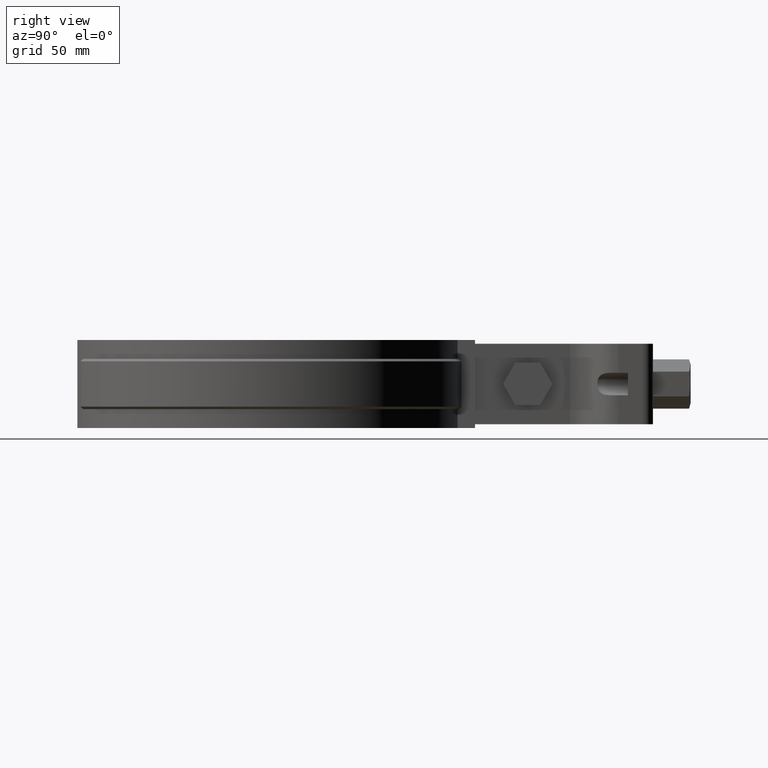
[diagram: clean part render]
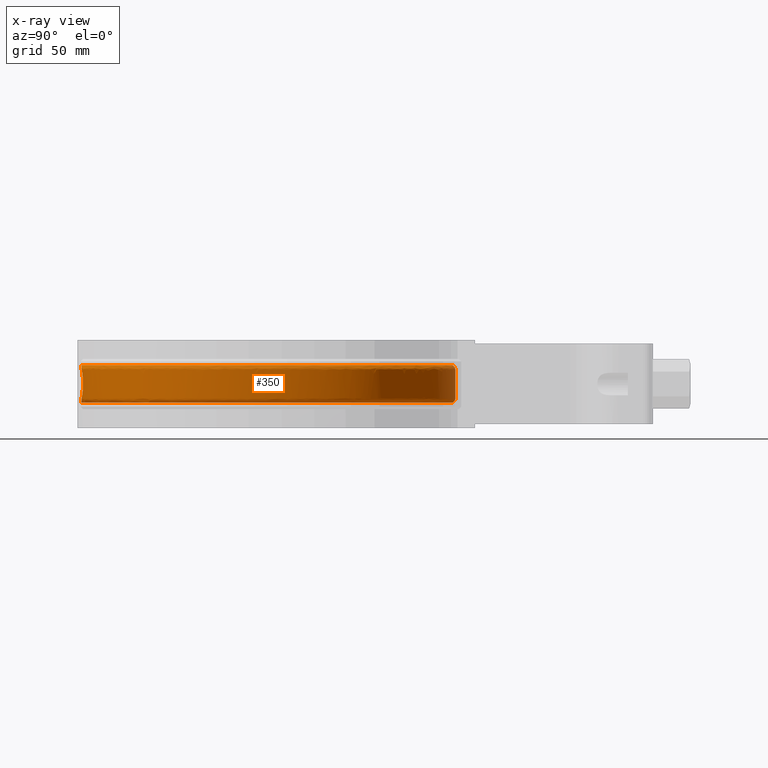
[diagram: x-ray — body ghosted, one internal face saturated and labeled with its STEP entity id]
A machine part, right view, then the same camera in x-ray: the body is ghosted and one INTERNAL B-rep face — a face not visible from any outside direction — is saturated and labeled: STEP entity #350.
In plain terms, the highlighted face is a freeform B-spline surface patch.
Its self-contained STEP definition (entity closure, byte-faithful):
#350 = ADVANCED_FACE( '', ( #571, #572 ), #573, .T. );
#571 = FACE_BOUND( '', #1333, .T. );
#572 = FACE_OUTER_BOUND( '', #1334, .T. );
#573 = B_SPLINE_SURFACE_WITH_KNOTS( '', 3, 3, ( ( #1335, #1336, #1337, #1338, #1339, #1340, #1341, #1342, #1343, #1344, #1345, #1346, #1347, #1348, #1349, #1350, #1351 ), ( #1352, #1353, #1354, #1355, #1356, #1357, #1358, #1359, #1360, #1361, #1362, #1363, #1364, #1365, #1366, #1367, #1368 ), ( #1369, #1370, #1371, #1372, #1373, #1374, #1375, #1376, #1377, #1378, #1379, #1380, #1381, #1382, #1383, #1384, #1385 ), ( #1386, #1387, #1388, #1389, #1390, #1391, #1392, #1393, #1394, #1395, #1396, #1397, #1398, #1399, #1400, #1401, #1402 ), ( #1403, #1404, #1405, #1406, #1407, #1408, #1409, #1410, #1411, #1412, #1413, #1414, #1415, #1416, #1417, #1418, #1419 ), ( #1420, #1421, #1422, #1423, #1424, #1425, #1426, #1427, #1428, #1429, #1430, #1431, #1432, #1433, #1434, #1435, #1436 ), ( #1437, #1438, #1439, #1440, #1441, #1442, #1443, #1444, #1445, #1446, #1447, #1448, #1449, #1450, #1451, #1452, #1453 ), ( #1454, #1455, #1456, #1457, #1458, #1459, #1460, #1461, #1462, #1463, #1464, #1465, #1466, #1467, #1468, #1469, #1470 ), ( #1471, #1472, #1473, #1474, #1475, #1476, #1477, #1478, #1479, #1480, #1481, #1482, #1483, #1484, #1485, #1486, #1487 ), ( #1488, #1489, #1490, #1491, #1492, #1493, #1494, #1495, #1496, #1497, #1498, #1499, #1500, #1501, #1502, #1503, #1504 ), ( #1505, #1506, #1507, #1508, #1509, #1510, #1511, #1512, #1513, #1514, #1515, #1516, #1517, #1518, #1519, #1520, #1521 ), ( #1522, #1523, #1524, #1525, #1526, #1527, #1528, #1529, #1530, #1531, #1532, #1533, #1534, #1535, #1536, #1537, #1538 ), ( #1539, #1540, #1541, #1542, #1543, #1544, #1545, #1546, #1547, #1548, #1549, #1550, #1551, #1552, #1553, #1554, #1555 ), ( #1556, #1557, #1558, #1559, #1560, #1561, #1562, #1563, #1564, #1565, #1566, #1567, #1568, #1569, #1570, #1571, #1572 ), ( #1573, #1574, #1575, #1576, #1577, #1578, #1579, #1580, #1581, #1582, #1583, #1584, #1585, #1586, #1587, #1588, #1589 ), ( #1590, #1591, #1592, #1593, #1594, #1595, #1596, #1597, #1598, #1599, #1600, #1601, #1602, #1603, #1604, #1605, #1606 ), ( #1607, #1608, #1609, #1610, #1611, #1612, #1613, #1614, #1615, #1616, #1617, #1618, #1619, #1620, #1621, #1622, #1623 ), ( #1624, #1625, #1626, #1627, #1628, #1629, #1630, #1631, #1632, #1633, #1634, #1635, #1636, #1637, #1638, #1639, #1640 ), ( #1641, #1642, #1643, #1644, #1645, #1646, #1647, #1648, #1649, #1650, #1651, #1652, #1653, #1654, #1655, #1656, #1657 ), ( #1658, #1659, #1660, #1661, #1662, #1663, #1664, #1665, #1666, #1667, #1668, #1669, #1670, #1671, #1672, #1673, #1674 ), ( #1675, #1676, #1677, #1678, #1679, #1680, #1681, #1682, #1683, #1684, #1685, #1686, #1687, #1688, #1689, #1690, #1691 ), ( #1692, #1693, #1694, #1695, #1696, #1697, #1698, #1699, #1700, #1701, #1702, #1703, #1704, #1705, #1706, #1707, #1708 ) ), .UNSPECIFIED., .F., .F., .F., ( 4, 3, 1, 1, 1, 3, 3, 1, 1, 1, 3, 4 ), ( 4, 1, 1, 1, 1, 1, 1, 1, 1, 1, 1, 1, 1, 1, 4 ), ( 0.000000000000000, 0.0909090909090909, 0.181818181818182, 0.272727272727273, 0.363636363636364, 0.454545454545455, 0.545454545454545, 0.636363636363636, 0.727272727272727, 0.818181818181818, 0.909090909090909, 1.00000000000000 ), ( 2.93927675343958, 4.00000000000000, 5.00000000000000, 6.00000000000000, 7.00000000000000, 8.00000000000000, 9.00000000000000, 10.0000000000000, 11.0000000000000, 12.0000000000000, 13.0000000000000, 14.0000000000000, 15.0000000000000, 16.0000000000000, 17.0000000000000 ), .UNSPECIFIED. );
#1333 = EDGE_LOOP( '', ( #3428, #3429, #3430, #3431, #3432, #3433 ) );
#1334 = EDGE_LOOP( '', ( #3434, #3435, #3436, #3437 ) );
#1335 = CARTESIAN_POINT( '', ( -4.61408278539141, 70.8624171730569, -26.5000000000000 ) );
#1336 = CARTESIAN_POINT( '', ( -15.6052744550126, 70.1472941383269, -26.5000000000000 ) );
#1337 = CARTESIAN_POINT( '', ( -36.6617611339115, 63.6807156917407, -26.5000000000000 ) );
#1338 = CARTESIAN_POINT( '', ( -60.4969619260765, 41.4439888512903, -26.5000000000000 ) );
#1339 = CARTESIAN_POINT( '', ( -72.3802217986226, 11.7823910310343, -26.5000000000000 ) );
#1340 = CARTESIAN_POINT( '', ( -70.5192778564034, -20.1169506966164, -26.5000000000000 ) );
#1341 = CARTESIAN_POINT( '', ( -55.2698527498513, -48.1966426214465, -26.5000000000000 ) );
#1342 = CARTESIAN_POINT( '', ( -29.5266031782373, -67.1256351168169, -26.5000000000000 ) );
#1343 = CARTESIAN_POINT( '', ( 1.82261616750916, -73.3099539517817, -26.5000000000000 ) );
#1344 = CARTESIAN_POINT( '', ( 32.8257890665060, -65.5754380062658, -26.5000000000000 ) );
#1345 = CARTESIAN_POINT( '', ( 57.5965972162112, -45.3906027783521, -26.5000000000000 ) );
#1346 = CARTESIAN_POINT( '', ( 71.4318266744617, -16.5877122940593, -26.5000000000000 ) );
#1347 = CARTESIAN_POINT( '', ( 71.7052861561752, 15.3643128019334, -26.5000000000000 ) );
#1348 = CARTESIAN_POINT( '', ( 58.3627979269206, 44.4001782011631, -26.5000000000000 ) );
#1349 = CARTESIAN_POINT( '', ( 33.9460318401430, 65.0025488558879, -26.5000000000000 ) );
#1350 = CARTESIAN_POINT( '', ( 13.3549246916386, 70.5185901661193, -26.5000000000000 ) );
#1351 = CARTESIAN_POINT( '', ( 2.97799040788178, 70.9496140061351, -26.5000000000000 ) );
#1352 = CARTESIAN_POINT( '', ( -4.58317847313393, 72.0000761796201, -25.3619288125423 ) );
#1353 = CARTESIAN_POINT( '', ( -15.7546006070130, 71.2897577749478, -25.3619288125423 ) );
#1354 = CARTESIAN_POINT( '', ( -37.1520462050843, 64.7507535133130, -25.3619288125423 ) );
#1355 = CARTESIAN_POINT( '', ( -61.4020090744283, 42.1941559292932, -25.3619288125423 ) );
#1356 = CARTESIAN_POINT( '', ( -73.5179681451020, 12.0766046186175, -25.3619288125423 ) );
#1357 = CARTESIAN_POINT( '', ( -71.6742434158291, -20.3345508184463, -25.3619288125423 ) );
#1358 = CARTESIAN_POINT( '', ( -56.2226090221052, -48.8847422760475, -25.3619288125423 ) );
#1359 = CARTESIAN_POINT( '', ( -30.0962954527366, -68.1535897998528, -25.3619288125423 ) );
#1360 = CARTESIAN_POINT( '', ( 1.74416083732159, -74.4825932048340, -25.3619288125423 ) );
#1361 = CARTESIAN_POINT( '', ( 33.2534664050969, -66.6701216190303, -25.3619288125423 ) );
#1362 = CARTESIAN_POINT( '', ( 58.4491977296035, -46.1994896762213, -25.3619288125423 ) );
#1363 = CARTESIAN_POINT( '', ( 72.5475111608291, -16.9572300654301, -25.3619288125423 ) );
#1364 = CARTESIAN_POINT( '', ( 72.8720854100233, 15.5043409607623, -25.3619288125423 ) );
#1365 = CARTESIAN_POINT( '', ( 59.3597111215706, 45.0230947830519, -25.3619288125423 ) );
#1366 = CARTESIAN_POINT( '', ( 34.5818006473789, 65.9903515204438, -25.3619288125423 ) );
#1367 = CARTESIAN_POINT( '', ( 13.6743882856698, 71.6239562096893, -25.3619288125423 ) );
#1368 = CARTESIAN_POINT( '', ( 3.12959689003598, 72.0775419747086, -25.3619288125423 ) );
#1369 = CARTESIAN_POINT( '', ( -4.55227416087646, 73.1377351861834, -24.2238576250846 ) );
#1370 = CARTESIAN_POINT( '', ( -15.9039267590134, 72.4322214115685, -24.2238576250846 ) );
#1371 = CARTESIAN_POINT( '', ( -37.6423312762570, 65.8207913348853, -24.2238576250846 ) );
#1372 = CARTESIAN_POINT( '', ( -62.3070562227800, 42.9443230072962, -24.2238576250846 ) );
#1373 = CARTESIAN_POINT( '', ( -74.6557144915813, 12.3708182062007, -24.2238576250846 ) );
#1374 = CARTESIAN_POINT( '', ( -72.8292089752548, -20.5521509402763, -24.2238576250846 ) );
#1375 = CARTESIAN_POINT( '', ( -57.1753652943592, -49.5728419306485, -24.2238576250846 ) );
#1376 = CARTESIAN_POINT( '', ( -30.6659877272358, -69.1815444828886, -24.2238576250846 ) );
#1377 = CARTESIAN_POINT( '', ( 1.66570550713401, -75.6552324578863, -24.2238576250846 ) );
#1378 = CARTESIAN_POINT( '', ( 33.6811437436878, -67.7648052317949, -24.2238576250846 ) );
#1379 = CARTESIAN_POINT( '', ( 59.3017982429958, -47.0083765740904, -24.2238576250846 ) );
#1380 = CARTESIAN_POINT( '', ( 73.6631956471966, -17.3267478368009, -24.2238576250846 ) );
#1381 = CARTESIAN_POINT( '', ( 74.0388846638715, 15.6443691195912, -24.2238576250846 ) );
#1382 = CARTESIAN_POINT( '', ( 60.3566243162205, 45.6460113649407, -24.2238576250846 ) );
#1383 = CARTESIAN_POINT( '', ( 35.2175694546148, 66.9781541849998, -24.2238576250846 ) );
#1384 = CARTESIAN_POINT( '', ( 13.9938518797011, 72.7293222532593, -24.2238576250846 ) );
#1385 = CARTESIAN_POINT( '', ( 3.28120337219018, 73.2054699432820, -24.2238576250846 ) );
#1386 = CARTESIAN_POINT( '', ( -4.52136984861898, 74.2753941927466, -23.0857864376269 ) );
#1387 = CARTESIAN_POINT( '', ( -16.0532529110138, 73.5746850481894, -23.0857864376269 ) );
#1388 = CARTESIAN_POINT( '', ( -38.1326163474298, 66.8908291564576, -23.0857864376269 ) );
#1389 = CARTESIAN_POINT( '', ( -63.2121033711318, 43.6944900852991, -23.0857864376269 ) );
#1390 = CARTESIAN_POINT( '', ( -75.7934608380606, 12.6650317937838, -23.0857864376269 ) );
#1391 = CARTESIAN_POINT( '', ( -73.9841745346804, -20.7697510621062, -23.0857864376269 ) );
#1392 = CARTESIAN_POINT( '', ( -58.1281215666131, -50.2609415852494, -23.0857864376269 ) );
#1393 = CARTESIAN_POINT( '', ( -31.2356800017350, -70.2094991659245, -23.0857864376269 ) );
#1394 = CARTESIAN_POINT( '', ( 1.58725017694644, -76.8278717109386, -23.0857864376269 ) );
#1395 = CARTESIAN_POINT( '', ( 34.1088210822787, -68.8594888445595, -23.0857864376269 ) );
#1396 = CARTESIAN_POINT( '', ( 60.1543987563881, -47.8172634719595, -23.0857864376269 ) );
#1397 = CARTESIAN_POINT( '', ( 74.7788801335641, -17.6962656081718, -23.0857864376269 ) );
#1398 = CARTESIAN_POINT( '', ( 75.2056839177196, 15.7843972784200, -23.0857864376269 ) );
#1399 = CARTESIAN_POINT( '', ( 61.3535375108704, 46.2689279468294, -23.0857864376269 ) );
#1400 = CARTESIAN_POINT( '', ( 35.8533382618507, 67.9659568495558, -23.0857864376269 ) );
#1401 = CARTESIAN_POINT( '', ( 14.3133154737323, 73.8346882968293, -23.0857864376269 ) );
#1402 = CARTESIAN_POINT( '', ( 3.43280985434438, 74.3333979118554, -23.0857864376269 ) );
#1403 = CARTESIAN_POINT( '', ( -4.51885640188860, 74.3679199634714, -22.9932271442431 ) );
#1404 = CARTESIAN_POINT( '', ( -16.0653976021941, 73.6676015793235, -22.9932271442431 ) );
#1405 = CARTESIAN_POINT( '', ( -38.1724912166335, 66.9778552983634, -22.9932271442431 ) );
#1406 = CARTESIAN_POINT( '', ( -63.2857108268460, 43.7555011498309, -22.9932271442431 ) );
#1407 = CARTESIAN_POINT( '', ( -75.8859937121379, 12.6889601754797, -22.9932271442431 ) );
#1408 = CARTESIAN_POINT( '', ( -74.0781078467977, -20.7874484730755, -22.9932271442431 ) );
#1409 = CARTESIAN_POINT( '', ( -58.2056092038529, -50.3169047082152, -22.9932271442431 ) );
#1410 = CARTESIAN_POINT( '', ( -31.2820130562531, -70.2931026875152, -22.9932271442431 ) );
#1411 = CARTESIAN_POINT( '', ( 1.58086940744416, -76.9232424239949, -22.9932271442431 ) );
#1412 = CARTESIAN_POINT( '', ( 34.1436040665880, -68.9485194278771, -22.9932271442431 ) );
#1413 = CARTESIAN_POINT( '', ( 60.2237407289536, -47.8830502175685, -22.9932271442431 ) );
#1414 = CARTESIAN_POINT( '', ( 74.8696187172621, -17.7263184767338, -22.9932271442431 ) );
#1415 = CARTESIAN_POINT( '', ( 75.3005796638268, 15.7957857641122, -22.9932271442431 ) );
#1416 = CARTESIAN_POINT( '', ( 61.4346164292006, 46.3195897325702, -22.9932271442431 ) );
#1417 = CARTESIAN_POINT( '', ( 35.9050453186691, 68.0462948087639, -22.9932271442431 ) );
#1418 = CARTESIAN_POINT( '', ( 14.3392974376474, 73.9245876819037, -22.9932271442431 ) );
#1419 = CARTESIAN_POINT( '', ( 3.44514000470337, 74.4251322575709, -22.9932271442431 ) );
#1420 = CARTESIAN_POINT( '', ( -4.51432461421930, 74.5347455189103, -22.7898759680773 ) );
#1421 = CARTESIAN_POINT( '', ( -16.0872946891993, 73.8351316824989, -22.7898759680773 ) );
#1422 = CARTESIAN_POINT( '', ( -38.2443862913878, 67.1347649284850, -22.7898759680773 ) );
#1423 = CARTESIAN_POINT( '', ( -63.4184263350528, 43.8655051481623, -22.7898759680773 ) );
#1424 = CARTESIAN_POINT( '', ( -76.0528320750436, 12.7321034590850, -22.7898759680773 ) );
#1425 = CARTESIAN_POINT( '', ( -74.2474712235673, -20.8193572093299, -22.7898759680773 ) );
#1426 = CARTESIAN_POINT( '', ( -58.3453207460634, -50.4178071811124, -22.7898759680773 ) );
#1427 = CARTESIAN_POINT( '', ( -31.3655523501665, -70.4438412743625, -22.7898759680773 ) );
#1428 = CARTESIAN_POINT( '', ( 1.56936477032515, -77.0951974593712, -22.7898759680773 ) );
#1429 = CARTESIAN_POINT( '', ( 34.2063183853315, -69.1090431003269, -22.7898759680773 ) );
#1430 = CARTESIAN_POINT( '', ( 60.3487654977055, -48.0016648509918, -22.7898759680773 ) );
#1431 = CARTESIAN_POINT( '', ( 75.0332219437640, -17.7805043154586, -22.7898759680773 ) );
#1432 = CARTESIAN_POINT( '', ( 75.4716783256278, 15.8163193996207, -22.7898759680772 ) );
#1433 = CARTESIAN_POINT( '', ( 61.5808031129628, 46.4109338033032, -22.7898759680773 ) );
#1434 = CARTESIAN_POINT( '', ( 35.9982740311268, 68.1911455304897, -22.7898759680773 ) );
#1435 = CARTESIAN_POINT( '', ( 14.3861433653017, 74.0866778188585, -22.7898759680773 ) );
#1436 = CARTESIAN_POINT( '', ( 3.46737147779644, 74.5905308601105, -22.7898759680773 ) );
#1437 = CARTESIAN_POINT( '', ( -4.50927348117781, 74.7206893752282, -22.4418734431229 ) );
#1438 = CARTESIAN_POINT( '', ( -16.1117011944806, 74.0218608281134, -22.4418734431229 ) );
#1439 = CARTESIAN_POINT( '', ( -38.3245205814545, 67.3096564889625, -22.4418734431229 ) );
#1440 = CARTESIAN_POINT( '', ( -63.5663511138689, 43.9881156655158, -22.4418734431229 ) );
#1441 = CARTESIAN_POINT( '', ( -76.2387902065711, 12.7801909868422, -22.4418734431229 ) );
#1442 = CARTESIAN_POINT( '', ( -74.4362437369434, -20.8549227043990, -22.4418734431229 ) );
#1443 = CARTESIAN_POINT( '', ( -58.5010433082476, -50.5302731331854, -22.4418734431229 ) );
#1444 = CARTESIAN_POINT( '', ( -31.4586652933452, -70.6118545865949, -22.4418734431229 ) );
#1445 = CARTESIAN_POINT( '', ( 1.55654169543223, -77.2868586368632, -22.4418734431229 ) );
#1446 = CARTESIAN_POINT( '', ( 34.2762197996733, -69.2879628743815, -22.4418734431229 ) );
#1447 = CARTESIAN_POINT( '', ( 60.4881181740735, -48.1338727869788, -22.4418734431229 ) );
#1448 = CARTESIAN_POINT( '', ( 75.2155741904674, -17.8408998812567, -22.4418734431229 ) );
#1449 = CARTESIAN_POINT( '', ( 75.6623849886592, 15.8392062011100, -22.4418734431229 ) );
#1450 = CARTESIAN_POINT( '', ( 61.7437428715003, 46.5127459550398, -22.4418734431229 ) );
#1451 = CARTESIAN_POINT( '', ( 36.1021868055715, 68.3525962250027, -22.4418734431229 ) );
#1452 = CARTESIAN_POINT( '', ( 14.4383578621629, 74.2673435751163, -22.4418734431229 ) );
#1453 = CARTESIAN_POINT( '', ( 3.49215068999615, 74.7748842339382, -22.4418734431229 ) );
#1454 = CARTESIAN_POINT( '', ( -4.50616300880884, 74.8351930365859, -22.0642686993349 ) );
#1455 = CARTESIAN_POINT( '', ( -16.1267306462249, 74.1368480682324, -22.0642686993349 ) );
#1456 = CARTESIAN_POINT( '', ( -38.3738670336291, 67.4173541801464, -22.0642686993349 ) );
#1457 = CARTESIAN_POINT( '', ( -63.6574427428982, 44.0636188493045, -22.0642686993349 ) );
#1458 = CARTESIAN_POINT( '', ( -76.3533026585596, 12.8098031402248, -22.0642686993349 ) );
#1459 = CARTESIAN_POINT( '', ( -74.5524892767171, -20.8768238281256, -22.0642686993349 ) );
#1460 = CARTESIAN_POINT( '', ( -58.5969367885657, -50.5995293245189, -22.0642686993349 ) );
#1461 = CARTESIAN_POINT( '', ( -31.5160039606445, -70.7153166734226, -22.0642686993349 ) );
#1462 = CARTESIAN_POINT( '', ( 1.54864528490176, -77.4048830072165, -22.0642686993349 ) );
#1463 = CARTESIAN_POINT( '', ( 34.3192648780894, -69.3981411272383, -22.0642686993349 ) );
#1464 = CARTESIAN_POINT( '', ( 60.5739311284787, -48.2152860319811, -22.0642686993349 ) );
#1465 = CARTESIAN_POINT( '', ( 75.3278661495449, -17.8780912870422, -22.0642686993349 ) );
#1466 = CARTESIAN_POINT( '', ( 75.7798215719099, 15.8532998238797, -22.0642686993349 ) );
#1467 = CARTESIAN_POINT( '', ( 61.8440806793890, 46.5754415685191, -22.0642686993349 ) );
#1468 = CARTESIAN_POINT( '', ( 36.1661759761276, 68.4520170717926, -22.0642686993349 ) );
#1469 = CARTESIAN_POINT( '', ( 14.4705113905718, 74.3785969985052, -22.0642686993349 ) );
#1470 = CARTESIAN_POINT( '', ( 3.50740965352747, 74.8884084810143, -22.0642686993349 ) );
#1471 = CARTESIAN_POINT( '', ( -4.50546282348372, 74.8609684731900, -21.8024714832808 ) );
#1472 = CARTESIAN_POINT( '', ( -16.1301138627616, 74.1627323612132, -21.8024714832808 ) );
#1473 = CARTESIAN_POINT( '', ( -38.3849752054952, 67.4415975534900, -21.8024714832808 ) );
#1474 = CARTESIAN_POINT( '', ( -63.6779479955807, 44.0806150527802, -21.8024714832808 ) );
#1475 = CARTESIAN_POINT( '', ( -76.3790800739854, 12.8164690072650, -21.8024714832808 ) );
#1476 = CARTESIAN_POINT( '', ( -74.5786568202298, -20.8817538977800, -21.8024714832808 ) );
#1477 = CARTESIAN_POINT( '', ( -58.6185229657532, -50.6151192938525, -21.8024714832808 ) );
#1478 = CARTESIAN_POINT( '', ( -31.5289112263722, -70.7386065877217, -21.8024714832808 ) );
#1479 = CARTESIAN_POINT( '', ( 1.54686775720863, -77.4314509757836, -21.8024714832808 ) );
#1480 = CARTESIAN_POINT( '', ( 34.3289545742675, -69.4229428893652, -21.8024714832808 ) );
#1481 = CARTESIAN_POINT( '', ( 60.5932481209648, -48.2336126244272, -21.8024714832808 ) );
#1482 = CARTESIAN_POINT( '', ( 75.3531437191705, -17.8864632876462, -21.8024714832808 ) );
#1483 = CARTESIAN_POINT( '', ( 75.8062572261997, 15.8564723799003, -21.8024714832808 ) );
#1484 = CARTESIAN_POINT( '', ( 61.8666673004241, 46.5895547138232, -21.8024714832808 ) );
#1485 = CARTESIAN_POINT( '', ( 36.1805803086132, 68.4743972795795, -21.8024714832808 ) );
#1486 = CARTESIAN_POINT( '', ( 14.4777493358328, 74.4036407877390, -21.8024714832808 ) );
#1487 = CARTESIAN_POINT( '', ( 3.51084453449531, 74.9139634457974, -21.8024714832808 ) );
#1488 = CARTESIAN_POINT( '', ( -4.50546282348372, 74.8609684731900, -21.6715728752538 ) );
#1489 = CARTESIAN_POINT( '', ( -16.1301138627616, 74.1627323612132, -21.6715728752538 ) );
#1490 = CARTESIAN_POINT( '', ( -38.3849752054952, 67.4415975534900, -21.6715728752538 ) );
#1491 = CARTESIAN_POINT( '', ( -63.6779479955807, 44.0806150527802, -21.6715728752538 ) );
#1492 = CARTESIAN_POINT( '', ( -76.3790800739854, 12.8164690072650, -21.6715728752538 ) );
#1493 = CARTESIAN_POINT( '', ( -74.5786568202298, -20.8817538977800, -21.6715728752538 ) );
#1494 = CARTESIAN_POINT( '', ( -58.6185229657532, -50.6151192938525, -21.6715728752538 ) );
#1495 = CARTESIAN_POINT( '', ( -31.5289112263722, -70.7386065877217, -21.6715728752538 ) );
#1496 = CARTESIAN_POINT( '', ( 1.54686775720863, -77.4314509757836, -21.6715728752538 ) );
#1497 = CARTESIAN_POINT( '', ( 34.3289545742675, -69.4229428893652, -21.6715728752538 ) );
#1498 = CARTESIAN_POINT( '', ( 60.5932481209648, -48.2336126244272, -21.6715728752538 ) );
#1499 = CARTESIAN_POINT( '', ( 75.3531437191705, -17.8864632876462, -21.6715728752538 ) );
#1500 = CARTESIAN_POINT( '', ( 75.8062572261997, 15.8564723799003, -21.6715728752538 ) );
#1501 = CARTESIAN_POINT( '', ( 61.8666673004241, 46.5895547138232, -21.6715728752538 ) );
#1502 = CARTESIAN_POINT( '', ( 36.1805803086132, 68.4743972795795, -21.6715728752538 ) );
#1503 = CARTESIAN_POINT( '', ( 14.4777493358328, 74.4036407877390, -21.6715728752538 ) );
#1504 = CARTESIAN_POINT( '', ( 3.51084453449531, 74.9139634457974, -21.6715728752538 ) );
#1505 = CARTESIAN_POINT( '', ( -4.50546282348372, 74.8609684731900, -17.8905242917513 ) );
#1506 = CARTESIAN_POINT( '', ( -16.1301138627616, 74.1627323612132, -17.8905242917513 ) );
#1507 = CARTESIAN_POINT( '', ( -38.3849752054952, 67.4415975534900, -17.8905242917513 ) );
#1508 = CARTESIAN_POINT( '', ( -63.6779479955807, 44.0806150527802, -17.8905242917513 ) );
#1509 = CARTESIAN_POINT( '', ( -76.3790800739854, 12.8164690072650, -17.8905242917513 ) );
#1510 = CARTESIAN_POINT( '', ( -74.5786568202298, -20.8817538977800, -17.8905242917513 ) );
#1511 = CARTESIAN_POINT( '', ( -58.6185229657532, -50.6151192938525, -17.8905242917513 ) );
#1512 = CARTESIAN_POINT( '', ( -31.5289112263722, -70.7386065877217, -17.8905242917513 ) );
#1513 = CARTESIAN_POINT( '', ( 1.54686775720863, -77.4314509757836, -17.8905242917513 ) );
#1514 = CARTESIAN_POINT( '', ( 34.3289545742675, -69.4229428893652, -17.8905242917513 ) );
#1515 = CARTESIAN_POINT( '', ( 60.5932481209648, -48.2336126244272, -17.8905242917513 ) );
#1516 = CARTESIAN_POINT( '', ( 75.3531437191705, -17.8864632876462, -17.8905242917513 ) );
#1517 = CARTESIAN_POINT( '', ( 75.8062572261997, 15.8564723799003, -17.8905242917512 ) );
#1518 = CARTESIAN_POINT( '', ( 61.8666673004241, 46.5895547138232, -17.8905242917513 ) );
#1519 = CARTESIAN_POINT( '', ( 36.1805803086132, 68.4743972795795, -17.8905242917513 ) );
#1520 = CARTESIAN_POINT( '', ( 14.4777493358328, 74.4036407877390, -17.8905242917513 ) );
#1521 = CARTESIAN_POINT( '', ( 3.51084453449531, 74.9139634457974, -17.8905242917513 ) );
#1522 = CARTESIAN_POINT( '', ( -4.50546282348372, 74.8609684731900, -14.1094757082487 ) );
#1523 = CARTESIAN_POINT( '', ( -16.1301138627616, 74.1627323612132, -14.1094757082487 ) );
#1524 = CARTESIAN_POINT( '', ( -38.3849752054952, 67.4415975534900, -14.1094757082487 ) );
#1525 = CARTESIAN_POINT( '', ( -63.6779479955807, 44.0806150527802, -14.1094757082487 ) );
#1526 = CARTESIAN_POINT( '', ( -76.3790800739854, 12.8164690072650, -14.1094757082487 ) );
#1527 = CARTESIAN_POINT( '', ( -74.5786568202298, -20.8817538977800, -14.1094757082487 ) );
#1528 = CARTESIAN_POINT( '', ( -58.6185229657532, -50.6151192938525, -14.1094757082487 ) );
#1529 = CARTESIAN_POINT( '', ( -31.5289112263722, -70.7386065877217, -14.1094757082487 ) );
#1530 = CARTESIAN_POINT( '', ( 1.54686775720863, -77.4314509757836, -14.1094757082487 ) );
#1531 = CARTESIAN_POINT( '', ( 34.3289545742675, -69.4229428893652, -14.1094757082487 ) );
#1532 = CARTESIAN_POINT( '', ( 60.5932481209648, -48.2336126244272, -14.1094757082487 ) );
#1533 = CARTESIAN_POINT( '', ( 75.3531437191705, -17.8864632876462, -14.1094757082487 ) );
#1534 = CARTESIAN_POINT( '', ( 75.8062572261997, 15.8564723799003, -14.1094757082487 ) );
#1535 = CARTESIAN_POINT( '', ( 61.8666673004241, 46.5895547138232, -14.1094757082487 ) );
#1536 = CARTESIAN_POINT( '', ( 36.1805803086132, 68.4743972795795, -14.1094757082487 ) );
#1537 = CARTESIAN_POINT( '', ( 14.4777493358328, 74.4036407877390, -14.1094757082487 ) );
#1538 = CARTESIAN_POINT( '', ( 3.51084453449531, 74.9139634457974, -14.1094757082487 ) );
#1539 = CARTESIAN_POINT( '', ( -4.50546282348372, 74.8609684731900, -10.3284271247462 ) );
#1540 = CARTESIAN_POINT( '', ( -16.1301138627616, 74.1627323612132, -10.3284271247462 ) );
#1541 = CARTESIAN_POINT( '', ( -38.3849752054952, 67.4415975534900, -10.3284271247462 ) );
#1542 = CARTESIAN_POINT( '', ( -63.6779479955807, 44.0806150527802, -10.3284271247462 ) );
#1543 = CARTESIAN_POINT( '', ( -76.3790800739854, 12.8164690072650, -10.3284271247462 ) );
#1544 = CARTESIAN_POINT( '', ( -74.5786568202298, -20.8817538977800, -10.3284271247462 ) );
#1545 = CARTESIAN_POINT( '', ( -58.6185229657532, -50.6151192938525, -10.3284271247462 ) );
#1546 = CARTESIAN_POINT( '', ( -31.5289112263722, -70.7386065877217, -10.3284271247462 ) );
#1547 = CARTESIAN_POINT( '', ( 1.54686775720863, -77.4314509757836, -10.3284271247462 ) );
#1548 = CARTESIAN_POINT( '', ( 34.3289545742675, -69.4229428893652, -10.3284271247462 ) );
#1549 = CARTESIAN_POINT( '', ( 60.5932481209648, -48.2336126244272, -10.3284271247462 ) );
#1550 = CARTESIAN_POINT( '', ( 75.3531437191705, -17.8864632876462, -10.3284271247462 ) );
#1551 = CARTESIAN_POINT( '', ( 75.8062572261997, 15.8564723799003, -10.3284271247462 ) );
#1552 = CARTESIAN_POINT( '', ( 61.8666673004241, 46.5895547138232, -10.3284271247462 ) );
#1553 = CARTESIAN_POINT( '', ( 36.1805803086132, 68.4743972795795, -10.3284271247462 ) );
#1554 = CARTESIAN_POINT( '', ( 14.4777493358328, 74.4036407877390, -10.3284271247462 ) );
#1555 = CARTESIAN_POINT( '', ( 3.51084453449531, 74.9139634457974, -10.3284271247462 ) );
#1556 = CARTESIAN_POINT( '', ( -4.50546282348372, 74.8609684731900, -10.1975285167192 ) );
#1557 = CARTESIAN_POINT( '', ( -16.1301138627616, 74.1627323612132, -10.1975285167192 ) );
#1558 = CARTESIAN_POINT( '', ( -38.3849752054952, 67.4415975534900, -10.1975285167192 ) );
#1559 = CARTESIAN_POINT( '', ( -63.6779479955807, 44.0806150527802, -10.1975285167192 ) );
#1560 = CARTESIAN_POINT( '', ( -76.3790800739854, 12.8164690072650, -10.1975285167192 ) );
#1561 = CARTESIAN_POINT( '', ( -74.5786568202298, -20.8817538977800, -10.1975285167192 ) );
#1562 = CARTESIAN_POINT( '', ( -58.6185229657532, -50.6151192938525, -10.1975285167192 ) );
#1563 = CARTESIAN_POINT( '', ( -31.5289112263722, -70.7386065877217, -10.1975285167192 ) );
#1564 = CARTESIAN_POINT( '', ( 1.54686775720863, -77.4314509757836, -10.1975285167192 ) );
#1565 = CARTESIAN_POINT( '', ( 34.3289545742675, -69.4229428893652, -10.1975285167192 ) );
#1566 = CARTESIAN_POINT( '', ( 60.5932481209648, -48.2336126244272, -10.1975285167192 ) );
#1567 = CARTESIAN_POINT( '', ( 75.3531437191705, -17.8864632876462, -10.1975285167192 ) );
#1568 = CARTESIAN_POINT( '', ( 75.8062572261997, 15.8564723799003, -10.1975285167192 ) );
#1569 = CARTESIAN_POINT( '', ( 61.8666673004241, 46.5895547138232, -10.1975285167192 ) );
#1570 = CARTESIAN_POINT( '', ( 36.1805803086132, 68.4743972795795, -10.1975285167192 ) );
#1571 = CARTESIAN_POINT( '', ( 14.4777493358328, 74.4036407877390, -10.1975285167192 ) );
#1572 = CARTESIAN_POINT( '', ( 3.51084453449531, 74.9139634457974, -10.1975285167192 ) );
#1573 = CARTESIAN_POINT( '', ( -4.50616300880884, 74.8351930365859, -9.93573130066510 ) );
#1574 = CARTESIAN_POINT( '', ( -16.1267306462249, 74.1368480682324, -9.93573130066510 ) );
#1575 = CARTESIAN_POINT( '', ( -38.3738670336291, 67.4173541801463, -9.93573130066510 ) );
#1576 = CARTESIAN_POINT( '', ( -63.6574427428982, 44.0636188493045, -9.93573130066510 ) );
#1577 = CARTESIAN_POINT( '', ( -76.3533026585596, 12.8098031402248, -9.93573130066510 ) );
#1578 = CARTESIAN_POINT( '', ( -74.5524892767171, -20.8768238281256, -9.93573130066510 ) );
#1579 = CARTESIAN_POINT( '', ( -58.5969367885657, -50.5995293245189, -9.93573130066510 ) );
#1580 = CARTESIAN_POINT( '', ( -31.5160039606445, -70.7153166734226, -9.93573130066510 ) );
#1581 = CARTESIAN_POINT( '', ( 1.54864528490176, -77.4048830072165, -9.93573130066510 ) );
#1582 = CARTESIAN_POINT( '', ( 34.3192648780894, -69.3981411272383, -9.93573130066510 ) );
#1583 = CARTESIAN_POINT( '', ( 60.5739311284787, -48.2152860319811, -9.93573130066510 ) );
#1584 = CARTESIAN_POINT( '', ( 75.3278661495449, -17.8780912870422, -9.93573130066510 ) );
#1585 = CARTESIAN_POINT( '', ( 75.7798215719099, 15.8532998238797, -9.93573130066509 ) );
#1586 = CARTESIAN_POINT( '', ( 61.8440806793889, 46.5754415685191, -9.93573130066510 ) );
#1587 = CARTESIAN_POINT( '', ( 36.1661759761276, 68.4520170717926, -9.93573130066510 ) );
#1588 = CARTESIAN_POINT( '', ( 14.4705113905718, 74.3785969985052, -9.93573130066510 ) );
#1589 = CARTESIAN_POINT( '', ( 3.50740965352747, 74.8884084810143, -9.93573130066510 ) );
#1590 = CARTESIAN_POINT( '', ( -4.50927348117781, 74.7206893752281, -9.55812655687708 ) );
#1591 = CARTESIAN_POINT( '', ( -16.1117011944806, 74.0218608281134, -9.55812655687708 ) );
#1592 = CARTESIAN_POINT( '', ( -38.3245205814545, 67.3096564889625, -9.55812655687708 ) );
#1593 = CARTESIAN_POINT( '', ( -63.5663511138689, 43.9881156655158, -9.55812655687707 ) );
#1594 = CARTESIAN_POINT( '', ( -76.2387902065711, 12.7801909868422, -9.55812655687708 ) );
#1595 = CARTESIAN_POINT( '', ( -74.4362437369434, -20.8549227043990, -9.55812655687708 ) );
#1596 = CARTESIAN_POINT( '', ( -58.5010433082476, -50.5302731331854, -9.55812655687707 ) );
#1597 = CARTESIAN_POINT( '', ( -31.4586652933452, -70.6118545865948, -9.55812655687708 ) );
#1598 = CARTESIAN_POINT( '', ( 1.55654169543223, -77.2868586368632, -9.55812655687708 ) );
#1599 = CARTESIAN_POINT( '', ( 34.2762197996733, -69.2879628743815, -9.55812655687708 ) );
#1600 = CARTESIAN_POINT( '', ( 60.4881181740735, -48.1338727869788, -9.55812655687708 ) );
#1601 = CARTESIAN_POINT( '', ( 75.2155741904675, -17.8408998812567, -9.55812655687707 ) );
#1602 = CARTESIAN_POINT( '', ( 75.6623849886592, 15.8392062011100, -9.55812655687707 ) );
#1603 = CARTESIAN_POINT( '', ( 61.7437428715003, 46.5127459550398, -9.55812655687708 ) );
#1604 = CARTESIAN_POINT( '', ( 36.1021868055715, 68.3525962250027, -9.55812655687708 ) );
#1605 = CARTESIAN_POINT( '', ( 14.4383578621629, 74.2673435751163, -9.55812655687708 ) );
#1606 = CARTESIAN_POINT( '', ( 3.49215068999615, 74.7748842339382, -9.55812655687708 ) );
#1607 = CARTESIAN_POINT( '', ( -4.51432461421930, 74.5347455189103, -9.21012403192273 ) );
#1608 = CARTESIAN_POINT( '', ( -16.0872946891993, 73.8351316824988, -9.21012403192273 ) );
#1609 = CARTESIAN_POINT( '', ( -38.2443862913878, 67.1347649284850, -9.21012403192273 ) );
#1610 = CARTESIAN_POINT( '', ( -63.4184263350528, 43.8655051481623, -9.21012403192273 ) );
#1611 = CARTESIAN_POINT( '', ( -76.0528320750436, 12.7321034590850, -9.21012403192273 ) );
#1612 = CARTESIAN_POINT( '', ( -74.2474712235672, -20.8193572093299, -9.21012403192274 ) );
#1613 = CARTESIAN_POINT( '', ( -58.3453207460634, -50.4178071811124, -9.21012403192273 ) );
#1614 = CARTESIAN_POINT( '', ( -31.3655523501665, -70.4438412743624, -9.21012403192273 ) );
#1615 = CARTESIAN_POINT( '', ( 1.56936477032515, -77.0951974593712, -9.21012403192273 ) );
#1616 = CARTESIAN_POINT( '', ( 34.2063183853315, -69.1090431003269, -9.21012403192273 ) );
#1617 = CARTESIAN_POINT( '', ( 60.3487654977054, -48.0016648509918, -9.21012403192273 ) );
#1618 = CARTESIAN_POINT( '', ( 75.0332219437640, -17.7805043154586, -9.21012403192273 ) );
#1619 = CARTESIAN_POINT( '', ( 75.4716783256278, 15.8163193996207, -9.21012403192272 ) );
#1620 = CARTESIAN_POINT( '', ( 61.5808031129628, 46.4109338033032, -9.21012403192274 ) );
#1621 = CARTESIAN_POINT( '', ( 35.9982740311268, 68.1911455304896, -9.21012403192273 ) );
#1622 = CARTESIAN_POINT( '', ( 14.3861433653017, 74.0866778188585, -9.21012403192273 ) );
#1623 = CARTESIAN_POINT( '', ( 3.46737147779644, 74.5905308601105, -9.21012403192273 ) );
#1624 = CARTESIAN_POINT( '', ( -4.51885640188860, 74.3679199634714, -9.00677285575691 ) );
#1625 = CARTESIAN_POINT( '', ( -16.0653976021941, 73.6676015793235, -9.00677285575690 ) );
#1626 = CARTESIAN_POINT( '', ( -38.1724912166335, 66.9778552983634, -9.00677285575691 ) );
#1627 = CARTESIAN_POINT( '', ( -63.2857108268460, 43.7555011498309, -9.00677285575690 ) );
#1628 = CARTESIAN_POINT( '', ( -75.8859937121379, 12.6889601754797, -9.00677285575690 ) );
#1629 = CARTESIAN_POINT( '', ( -74.0781078467977, -20.7874484730755, -9.00677285575691 ) );
#1630 = CARTESIAN_POINT( '', ( -58.2056092038529, -50.3169047082152, -9.00677285575690 ) );
#1631 = CARTESIAN_POINT( '', ( -31.2820130562530, -70.2931026875152, -9.00677285575691 ) );
#1632 = CARTESIAN_POINT( '', ( 1.58086940744416, -76.9232424239949, -9.00677285575690 ) );
#1633 = CARTESIAN_POINT( '', ( 34.1436040665880, -68.9485194278771, -9.00677285575691 ) );
#1634 = CARTESIAN_POINT( '', ( 60.2237407289536, -47.8830502175685, -9.00677285575691 ) );
#1635 = CARTESIAN_POINT( '', ( 74.8696187172621, -17.7263184767338, -9.00677285575690 ) );
#1636 = CARTESIAN_POINT( '', ( 75.3005796638268, 15.7957857641122, -9.00677285575690 ) );
#1637 = CARTESIAN_POINT( '', ( 61.4346164292006, 46.3195897325701, -9.00677285575691 ) );
#1638 = CARTESIAN_POINT( '', ( 35.9050453186691, 68.0462948087639, -9.00677285575691 ) );
#1639 = CARTESIAN_POINT( '', ( 14.3392974376474, 73.9245876819036, -9.00677285575691 ) );
#1640 = CARTESIAN_POINT( '', ( 3.44514000470337, 74.4251322575709, -9.00677285575691 ) );
#1641 = CARTESIAN_POINT( '', ( -4.52136984861898, 74.2753941927466, -8.91421356237311 ) );
#1642 = CARTESIAN_POINT( '', ( -16.0532529110138, 73.5746850481894, -8.91421356237311 ) );
#1643 = CARTESIAN_POINT( '', ( -38.1326163474298, 66.8908291564576, -8.91421356237311 ) );
#1644 = CARTESIAN_POINT( '', ( -63.2121033711318, 43.6944900852991, -8.91421356237310 ) );
#1645 = CARTESIAN_POINT( '', ( -75.7934608380606, 12.6650317937838, -8.91421356237311 ) );
#1646 = CARTESIAN_POINT( '', ( -73.9841745346804, -20.7697510621062, -8.91421356237311 ) );
#1647 = CARTESIAN_POINT( '', ( -58.1281215666131, -50.2609415852494, -8.91421356237310 ) );
#1648 = CARTESIAN_POINT( '', ( -31.2356800017350, -70.2094991659245, -8.91421356237311 ) );
#1649 = CARTESIAN_POINT( '', ( 1.58725017694644, -76.8278717109386, -8.91421356237311 ) );
#1650 = CARTESIAN_POINT( '', ( 34.1088210822787, -68.8594888445595, -8.91421356237311 ) );
#1651 = CARTESIAN_POINT( '', ( 60.1543987563881, -47.8172634719595, -8.91421356237311 ) );
#1652 = CARTESIAN_POINT( '', ( 74.7788801335641, -17.6962656081718, -8.91421356237310 ) );
#1653 = CARTESIAN_POINT( '', ( 75.2056839177196, 15.7843972784200, -8.91421356237310 ) );
#1654 = CARTESIAN_POINT( '', ( 61.3535375108704, 46.2689279468294, -8.91421356237311 ) );
#1655 = CARTESIAN_POINT( '', ( 35.8533382618507, 67.9659568495558, -8.91421356237311 ) );
#1656 = CARTESIAN_POINT( '', ( 14.3133154737323, 73.8346882968293, -8.91421356237311 ) );
#1657 = CARTESIAN_POINT( '', ( 3.43280985434438, 74.3333979118554, -8.91421356237311 ) );
#1658 = CARTESIAN_POINT( '', ( -4.55227416087646, 73.1377351861834, -7.77614237491540 ) );
#1659 = CARTESIAN_POINT( '', ( -15.9039267590134, 72.4322214115686, -7.77614237491540 ) );
#1660 = CARTESIAN_POINT( '', ( -37.6423312762570, 65.8207913348853, -7.77614237491540 ) );
#1661 = CARTESIAN_POINT( '', ( -62.3070562227800, 42.9443230072962, -7.77614237491540 ) );
#1662 = CARTESIAN_POINT( '', ( -74.6557144915813, 12.3708182062007, -7.77614237491540 ) );
#1663 = CARTESIAN_POINT( '', ( -72.8292089752548, -20.5521509402763, -7.77614237491540 ) );
#1664 = CARTESIAN_POINT( '', ( -57.1753652943592, -49.5728419306485, -7.77614237491540 ) );
#1665 = CARTESIAN_POINT( '', ( -30.6659877272358, -69.1815444828886, -7.77614237491540 ) );
#1666 = CARTESIAN_POINT( '', ( 1.66570550713401, -75.6552324578863, -7.77614237491540 ) );
#1667 = CARTESIAN_POINT( '', ( 33.6811437436878, -67.7648052317949, -7.77614237491540 ) );
#1668 = CARTESIAN_POINT( '', ( 59.3017982429958, -47.0083765740904, -7.77614237491540 ) );
#1669 = CARTESIAN_POINT( '', ( 73.6631956471966, -17.3267478368010, -7.77614237491540 ) );
#1670 = CARTESIAN_POINT( '', ( 74.0388846638715, 15.6443691195912, -7.77614237491540 ) );
#1671 = CARTESIAN_POINT( '', ( 60.3566243162205, 45.6460113649407, -7.77614237491541 ) );
#1672 = CARTESIAN_POINT( '', ( 35.2175694546148, 66.9781541849998, -7.77614237491540 ) );
#1673 = CARTESIAN_POINT( '', ( 13.9938518797011, 72.7293222532593, -7.77614237491540 ) );
#1674 = CARTESIAN_POINT( '', ( 3.28120337219018, 73.2054699432820, -7.77614237491540 ) );
#1675 = CARTESIAN_POINT( '', ( -4.58317847313393, 72.0000761796201, -6.63807118745771 ) );
#1676 = CARTESIAN_POINT( '', ( -15.7546006070130, 71.2897577749478, -6.63807118745771 ) );
#1677 = CARTESIAN_POINT( '', ( -37.1520462050843, 64.7507535133130, -6.63807118745771 ) );
#1678 = CARTESIAN_POINT( '', ( -61.4020090744283, 42.1941559292932, -6.63807118745770 ) );
#1679 = CARTESIAN_POINT( '', ( -73.5179681451019, 12.0766046186175, -6.63807118745771 ) );
#1680 = CARTESIAN_POINT( '', ( -71.6742434158291, -20.3345508184463, -6.63807118745771 ) );
#1681 = CARTESIAN_POINT( '', ( -56.2226090221052, -48.8847422760475, -6.63807118745770 ) );
#1682 = CARTESIAN_POINT( '', ( -30.0962954527366, -68.1535897998528, -6.63807118745771 ) );
#1683 = CARTESIAN_POINT( '', ( 1.74416083732159, -74.4825932048340, -6.63807118745770 ) );
#1684 = CARTESIAN_POINT( '', ( 33.2534664050969, -66.6701216190303, -6.63807118745771 ) );
#1685 = CARTESIAN_POINT( '', ( 58.4491977296035, -46.1994896762213, -6.63807118745771 ) );
#1686 = CARTESIAN_POINT( '', ( 72.5475111608292, -16.9572300654301, -6.63807118745770 ) );
#1687 = CARTESIAN_POINT( '', ( 72.8720854100233, 15.5043409607623, -6.63807118745770 ) );
#1688 = CARTESIAN_POINT( '', ( 59.3597111215706, 45.0230947830519, -6.63807118745771 ) );
#1689 = CARTESIAN_POINT( '', ( 34.5818006473789, 65.9903515204438, -6.63807118745771 ) );
#1690 = CARTESIAN_POINT( '', ( 13.6743882856698, 71.6239562096893, -6.63807118745771 ) );
#1691 = CARTESIAN_POINT( '', ( 3.12959689003598, 72.0775419747086, -6.63807118745771 ) );
#1692 = CARTESIAN_POINT( '', ( -4.61408278539141, 70.8624171730569, -5.50000000000001 ) );
#1693 = CARTESIAN_POINT( '', ( -15.6052744550126, 70.1472941383270, -5.50000000000001 ) );
#1694 = CARTESIAN_POINT( '', ( -36.6617611339115, 63.6807156917407, -5.50000000000001 ) );
#1695 = CARTESIAN_POINT( '', ( -60.4969619260765, 41.4439888512903, -5.50000000000001 ) );
#1696 = CARTESIAN_POINT( '', ( -72.3802217986227, 11.7823910310343, -5.50000000000001 ) );
#1697 = CARTESIAN_POINT( '', ( -70.5192778564034, -20.1169506966164, -5.50000000000001 ) );
#1698 = CARTESIAN_POINT( '', ( -55.2698527498513, -48.1966426214466, -5.50000000000001 ) );
#1699 = CARTESIAN_POINT( '', ( -29.5266031782373, -67.1256351168169, -5.50000000000001 ) );
#1700 = CARTESIAN_POINT( '', ( 1.82261616750916, -73.3099539517817, -5.50000000000001 ) );
#1701 = CARTESIAN_POINT( '', ( 32.8257890665060, -65.5754380062658, -5.50000000000001 ) );
#1702 = CARTESIAN_POINT( '', ( 57.5965972162112, -45.3906027783521, -5.50000000000001 ) );
#1703 = CARTESIAN_POINT( '', ( 71.4318266744617, -16.5877122940593, -5.50000000000001 ) );
#1704 = CARTESIAN_POINT( '', ( 71.7052861561752, 15.3643128019334, -5.50000000000001 ) );
#1705 = CARTESIAN_POINT( '', ( 58.3627979269206, 44.4001782011632, -5.50000000000001 ) );
#1706 = CARTESIAN_POINT( '', ( 33.9460318401430, 65.0025488558879, -5.50000000000001 ) );
#1707 = CARTESIAN_POINT( '', ( 13.3549246916386, 70.5185901661193, -5.50000000000001 ) );
#1708 = CARTESIAN_POINT( '', ( 2.97799040788178, 70.9496140061351, -5.50000000000001 ) );
#3428 = ORIENTED_EDGE( '', *, *, #5072, .F. );
#3429 = ORIENTED_EDGE( '', *, *, #5070, .F. );
#3430 = ORIENTED_EDGE( '', *, *, #5067, .F. );
#3431 = ORIENTED_EDGE( '', *, *, #5061, .F. );
#3432 = ORIENTED_EDGE( '', *, *, #5059, .F. );
#3433 = ORIENTED_EDGE( '', *, *, #5073, .F. );
#3434 = ORIENTED_EDGE( '', *, *, #5074, .F. );
#3435 = ORIENTED_EDGE( '', *, *, #5075, .F. );
#3436 = ORIENTED_EDGE( '', *, *, #5076, .F. );
#3437 = ORIENTED_EDGE( '', *, *, #5077, .F. );
#5059 = EDGE_CURVE( '', #5597, #5599, #5600, .T. );
#5061 = EDGE_CURVE( '', #5599, #5602, #5603, .T. );
#5067 = EDGE_CURVE( '', #5602, #5612, #5613, .T. );
#5070 = EDGE_CURVE( '', #5612, #5617, #5618, .T. );
#5072 = EDGE_CURVE( '', #5617, #5620, #5621, .T. );
#5073 = EDGE_CURVE( '', #5620, #5597, #5622, .T. );
#5074 = EDGE_CURVE( '', #5623, #5624, #5625, .T. );
#5075 = EDGE_CURVE( '', #5626, #5623, #5627, .T. );
#5076 = EDGE_CURVE( '', #5628, #5626, #5629, .T. );
#5077 = EDGE_CURVE( '', #5624, #5628, #5630, .T. );
#5597 = VERTEX_POINT( '', #7475 );
#5599 = VERTEX_POINT( '', #7478 );
#5600 = B_SPLINE_CURVE_WITH_KNOTS( '', 3, ( #7479, #7480, #7481, #7482, #7483, #7484, #7485, #7486, #7487, #7488, #7489, #7490, #7491, #7492, #7493, #7494, #7495, #7496, #7497, #7498, #7499 ), .UNSPECIFIED., .F., .F., ( 4, 2, 2, 2, 2, 1, 2, 2, 2, 2, 4 ), ( 0.000000000000000, 0.00137876587349194, 0.00275753174698387, 0.00413629762047581, 0.00482568055722178, 0.00551506349396775, 0.00620444643071371, 0.00689382936745968, 0.00827259524095162, 0.00965136111444356, 0.0110301269879355 ), .UNSPECIFIED. );
#5602 = VERTEX_POINT( '', #7502 );
#5603 = B_SPLINE_CURVE_WITH_KNOTS( '', 3, ( #7503, #7504, #7505, #7506, #7507 ), .UNSPECIFIED., .F., .F., ( 4, 1, 4 ), ( 0.000000000000000, 0.00956034493262803, 0.0160532780454055 ), .UNSPECIFIED. );
#5612 = VERTEX_POINT( '', #7673 );
#5613 = B_SPLINE_CURVE_WITH_KNOTS( '', 3, ( #7674, #7675, #7676, #7677, #7678, #7679, #7680, #7681, #7682, #7683, #7684, #7685, #7686, #7687, #7688, #7689, #7690, #7691, #7692, #7693, #7694, #7695, #7696, #7697 ), .UNSPECIFIED., .F., .F., ( 4, 2, 2, 2, 2, 2, 2, 2, 2, 2, 2, 4 ), ( 5.20417042793042E-018, 0.00137353922733282, 0.00274707845466564, 0.00343384806833205, 0.00412061768199845, 0.00480738729566486, 0.00549415690933126, 0.00686769613666406, 0.00824123536399686, 0.00892800497766325, 0.00961477459132965, 0.0109883138186624 ), .UNSPECIFIED. );
#5617 = VERTEX_POINT( '', #7705 );
#5618 = B_SPLINE_CURVE_WITH_KNOTS( '', 3, ( #7706, #7707, #7708, #7709, #7710, #7711, #7712, #7713, #7714, #7715, #7716, #7717, #7718, #7719, #7720, #7721, #7722, #7723, #7724, #7725, #7726 ), .UNSPECIFIED., .F., .F., ( 4, 2, 2, 2, 2, 1, 2, 2, 2, 2, 4 ), ( 0.000000000000000, 0.00137877810421007, 0.00275755620842013, 0.00413633431263020, 0.00482572336473523, 0.00551511241684027, 0.00620450146894530, 0.00689389052105033, 0.00827266862526040, 0.00965144672947047, 0.0110302248336805 ), .UNSPECIFIED. );
#5620 = VERTEX_POINT( '', #7729 );
#5621 = B_SPLINE_CURVE_WITH_KNOTS( '', 3, ( #7730, #7731, #7732, #7733, #7734 ), .UNSPECIFIED., .F., .F., ( 4, 1, 4 ), ( 0.000000000000000, 0.00648482001672418, 0.0160332190390226 ), .UNSPECIFIED. );
#5622 = B_SPLINE_CURVE_WITH_KNOTS( '', 3, ( #7735, #7736, #7737, #7738, #7739, #7740, #7741, #7742, #7743, #7744, #7745, #7746, #7747, #7748, #7749, #7750, #7751, #7752, #7753, #7754, #7755, #7756, #7757, #7758 ), .UNSPECIFIED., .F., .F., ( 4, 2, 2, 2, 2, 2, 2, 2, 2, 2, 2, 4 ), ( 1.59933602078778E-017, 0.00137353891642351, 0.00274707783284701, 0.00343384729105876, 0.00412061674927051, 0.00480738620748226, 0.00549415566569401, 0.00686769458211750, 0.00824123349854099, 0.00892800295675274, 0.00961477241496449, 0.0109883113313880 ), .UNSPECIFIED. );
#5623 = VERTEX_POINT( '', #7759 );
#5624 = VERTEX_POINT( '', #7760 );
#5625 = B_SPLINE_CURVE_WITH_KNOTS( '', 3, ( #7761, #7762, #7763, #7764, #7765, #7766, #7767, #7768, #7769, #7770, #7771, #7772, #7773, #7774, #7775, #7776, #7777, #7778, #7779, #7780, #7781, #7782, #7783, #7784, #7785, #7786, #7787, #7788, #7789, #7790, #7791, #7792, #7793, #7794, #7795, #7796, #7797, #7798, #7799, #7800, #7801, #7802, #7803, #7804, #7805, #7806, #7807, #7808, #7809, #7810, #7811, #7812, #7813, #7814, #7815, #7816, #7817, #7818, #7819, #7820, #7821, #7822, #7823, #7824, #7825, #7826, #7827, #7828, #7829, #7830, #7831, #7832, #7833, #7834, #7835, #7836, #7837, #7838, #7839, #7840, #7841, #7842, #7843, #7844, #7845, #7846, #7847, #7848, #7849, #7850, #7851, #7852, #7853, #7854, #7855, #7856, #7857, #7858, #7859, #7860, #7861, #7862, #7863, #7864, #7865, #7866, #7867, #7868, #7869, #7870, #7871, #7872, #7873, #7874, #7875, #7876, #7877, #7878, #7879, #7880, #7881, #7882, #7883, #7884, #7885, #7886, #7887, #7888, #7889, #7890, #7891, #7892, #7893, #7894 ), .UNSPECIFIED., .F., .F., ( 4, 2, 2, 2, 2, 2, 2, 2, 2, 2, 2, 2, 2, 2, 2, 2, 2, 2, 2, 2, 2, 2, 2, 2, 2, 2, 2, 2, 2, 2, 2, 2, 2, 2, 2, 2, 2, 2, 2, 2, 2, 2, 2, 2, 2, 2, 2, 2, 2, 2, 2, 2, 2, 2, 2, 2, 2, 2, 2, 2, 2, 2, 2, 2, 2, 2, 4 ), ( 1.38777878078145E-017, 0.00705430745483267, 0.0141086149096653, 0.0176357686370817, 0.0211629223644980, 0.0282172298193307, 0.0423258447289961, 0.0458529984564125, 0.0493801521838288, 0.0564344596386615, 0.0705430745483270, 0.0846516894579924, 0.0917059969128251, 0.0952331506402415, 0.0987603043676578, 0.112868919277323, 0.119923226732156, 0.123450380459572, 0.126977534186989, 0.141086149096654, 0.144613302824071, 0.148140456551487, 0.155194764006320, 0.169303378915985, 0.172830532643402, 0.176357686370818, 0.183411993825651, 0.190466301280484, 0.193993455007900, 0.197520608735316, 0.211629223644982, 0.218683531099815, 0.222210684827231, 0.225737838554647, 0.239846453464313, 0.246900760919146, 0.253955068373978, 0.268063683283644, 0.271590837011060, 0.275117990738477, 0.282172298193309, 0.289226605648142, 0.296280913102975, 0.299808066830391, 0.303335220557808, 0.310389528012640, 0.317443835467473, 0.320970989194890, 0.324498142922306, 0.338606757831971, 0.345661065286804, 0.349188219014221, 0.352715372741637, 0.366823987651302, 0.370351141378719, 0.373878295106135, 0.380932602560968, 0.387986910015801, 0.395041217470633, 0.398568371198050, 0.402095524925466, 0.409149832380299, 0.423258447289965, 0.437367062199630, 0.444421369654463, 0.447948523381880, 0.451475677109296 ), .UNSPECIFIED. );
#5626 = VERTEX_POINT( '', #7895 );
#5627 = B_SPLINE_CURVE_WITH_KNOTS( '', 3, ( #7896, #7897, #7898, #7899, #7900, #7901, #7902, #7903, #7904, #7905, #7906, #7907, #7908, #7909, #7910, #7911, #7912, #7913, #7914, #7915, #7916, #7917, #7918, #7919, #7920, #7921, #7922, #7923, #7924, #7925, #7926, #7927, #7928, #7929, #7930, #7931, #7932, #7933, #7934 ), .UNSPECIFIED., .F., .F., ( 4, 2, 2, 2, 2, 2, 2, 2, 2, 1, 1, 1, 2, 2, 2, 2, 2, 2, 2, 2, 4 ), ( 5.20417042793042E-018, 0.000550621469635411, 0.00110124293927082, 0.00137655367408853, 0.00165186440890624, 0.00220248587854169, 0.00275310734817714, 0.00302841808299487, 0.00330372881781260, 0.00440497175708352, 0.00880994351416724, 0.0132149152712510, 0.0143161582105219, 0.0145914689453396, 0.0148667796801573, 0.0154174011497928, 0.0159680226194283, 0.0162433333542460, 0.0165186440890637, 0.0170692655586992, 0.0176198870283347 ), .UNSPECIFIED. );
#5628 = VERTEX_POINT( '', #7935 );
#5629 = B_SPLINE_CURVE_WITH_KNOTS( '', 3, ( #7936, #7937, #7938, #7939, #7940, #7941, #7942, #7943, #7944, #7945, #7946, #7947, #7948, #7949, #7950, #7951, #7952, #7953, #7954, #7955, #7956, #7957, #7958, #7959, #7960, #7961, #7962, #7963, #7964, #7965, #7966, #7967, #7968, #7969, #7970, #7971, #7972, #7973, #7974, #7975, #7976, #7977, #7978, #7979, #7980, #7981, #7982, #7983, #7984, #7985, #7986, #7987, #7988, #7989, #7990, #7991, #7992, #7993, #7994, #7995, #7996, #7997, #7998, #7999, #8000, #8001, #8002, #8003, #8004, #8005, #8006, #8007, #8008, #8009, #8010, #8011, #8012, #8013, #8014, #8015, #8016, #8017, #8018, #8019, #8020, #8021, #8022, #8023, #8024, #8025, #8026, #8027, #8028, #8029, #8030, #8031, #8032, #8033, #8034, #8035, #8036, #8037, #8038, #8039, #8040, #8041, #8042, #8043, #8044, #8045, #8046, #8047, #8048, #8049, #8050, #8051, #8052, #8053, #8054, #8055, #8056, #8057, #8058, #8059, #8060, #8061, #8062, #8063, #8064, #8065, #8066, #8067, #8068, #8069, #8070, #8071, #8072, #8073 ), .UNSPECIFIED., .F., .F., ( 4, 2, 2, 2, 2, 2, 2, 2, 2, 2, 2, 2, 2, 2, 2, 2, 2, 2, 2, 2, 2, 2, 2, 2, 2, 2, 2, 2, 2, 2, 2, 2, 2, 2, 2, 2, 2, 2, 2, 2, 2, 2, 2, 2, 2, 2, 2, 2, 2, 2, 2, 2, 2, 2, 2, 2, 2, 2, 2, 2, 2, 2, 2, 2, 2, 2, 2, 2, 4 ), ( 1.73472347597681E-018, 0.00705430651106766, 0.0141086130221353, 0.0176357662776692, 0.0211629195332030, 0.0282172260442707, 0.0423258390664060, 0.0458529923219399, 0.0493801455774738, 0.0564344520885415, 0.0634887585996092, 0.0705430651106769, 0.0846516781328123, 0.0917059846438800, 0.0952331378994139, 0.0987602911549477, 0.112868904177083, 0.119923210688151, 0.123450363943685, 0.126977517199219, 0.141086130221354, 0.144613283476888, 0.148140436732422, 0.155194743243489, 0.162249049754557, 0.169303356265625, 0.172830509521159, 0.176357662776693, 0.183411969287760, 0.190466275798828, 0.193993429054362, 0.197520582309896, 0.211629195332031, 0.218683501843099, 0.222210655098633, 0.225737808354167, 0.239846421376302, 0.246900727887370, 0.253955034398437, 0.261009340909505, 0.268063647420573, 0.271590800676107, 0.275117953931641, 0.282172260442708, 0.296280873464844, 0.299808026720378, 0.303335179975911, 0.310389486486979, 0.317443792998047, 0.320970946253581, 0.324498099509115, 0.338606712531250, 0.345661019042318, 0.349188172297852, 0.352715325553386, 0.359769632064453, 0.366823938575521, 0.370351091831055, 0.373878245086589, 0.380932551597657, 0.395041164619792, 0.398568317875326, 0.402095471130860, 0.409149777641928, 0.423258390664063, 0.437367003686199, 0.444421310197267, 0.447948463452801, 0.451475616708334 ), .UNSPECIFIED. );
#5630 = B_SPLINE_CURVE_WITH_KNOTS( '', 3, ( #8074, #8075, #8076, #8077, #8078, #8079, #8080, #8081, #8082, #8083, #8084, #8085, #8086, #8087, #8088, #8089, #8090, #8091, #8092, #8093, #8094, #8095, #8096, #8097, #8098, #8099, #8100, #8101, #8102, #8103, #8104, #8105, #8106, #8107, #8108, #8109, #8110, #8111, #8112 ), .UNSPECIFIED., .F., .F., ( 4, 2, 2, 2, 2, 2, 2, 2, 2, 1, 1, 1, 2, 2, 2, 2, 2, 2, 2, 2, 4 ), ( 1.73472347597681E-018, 0.000550727276491110, 0.00110145455298222, 0.00137681819122776, 0.00165218182947331, 0.00220290910596440, 0.00275363638245550, 0.00302900002070104, 0.00330436365894658, 0.00440581821192876, 0.00881163642385747, 0.0132174546357862, 0.0143189091887684, 0.0145942728270139, 0.0148696364652594, 0.0154203637417505, 0.0159710910182416, 0.0162464546564871, 0.0165218182947327, 0.0170725455712238, 0.0176232728477149 ), .UNSPECIFIED. );
#7475 = CARTESIAN_POINT( '', ( -15.0000000000000, -73.4730172923338, -16.0000000000000 ) );
#7478 = CARTESIAN_POINT( '', ( -8.00000000000002, -74.0571698867520, -9.00000000000001 ) );
#7479 = CARTESIAN_POINT( '', ( -15.0000000000000, -73.4730172923338, -16.0000000000000 ) );
#7480 = CARTESIAN_POINT( '', ( -15.0000000000000, -73.4730172923338, -15.5353391788664 ) );
#7481 = CARTESIAN_POINT( '', ( -14.9541897585053, -73.4824114658373, -15.0776450877047 ) );
#7482 = CARTESIAN_POINT( '', ( -14.7737438975927, -73.5189030388669, -14.1757501839493 ) );
#7483 = CARTESIAN_POINT( '', ( -14.6371117796517, -73.5463902685453, -13.7288217788273 ) );
#7484 = CARTESIAN_POINT( '', ( -14.2848477993533, -73.6156385783253, -12.8838819940695 ) );
#7485 = CARTESIAN_POINT( '', ( -14.0689457887911, -73.6574640869408, -12.4815490878635 ) );
#7486 = CARTESIAN_POINT( '', ( -13.6844756245528, -73.7295633936370, -11.9085898731653 ) );
#7487 = CARTESIAN_POINT( '', ( -13.5461960211973, -73.7551477524541, -11.7230874401568 ) );
#7488 = CARTESIAN_POINT( '', ( -13.2552941245088, -73.8080340458390, -11.3702964441562 ) );
#7489 = CARTESIAN_POINT( '', ( -12.9486905523251, -73.8628954942041, -11.0335889967095 ) );
#7490 = CARTESIAN_POINT( '', ( -12.6111647150263, -73.9210320510181, -10.7284484439813 ) );
#7491 = CARTESIAN_POINT( '', ( -12.2579621076358, -73.9805215022140, -10.4392577359848 ) );
#7492 = CARTESIAN_POINT( '', ( -12.0724639035210, -74.0150335554812, -10.3019574503043 ) );
#7493 = CARTESIAN_POINT( '', ( -11.4996101703394, -74.0774634899401, -9.92025220669863 ) );
#7494 = CARTESIAN_POINT( '', ( -11.0980810089440, -74.0743588738192, -9.70642586691257 ) );
#7495 = CARTESIAN_POINT( '', ( -10.2569654139243, -74.0439139825706, -9.35821647243784 ) );
#7496 = CARTESIAN_POINT( '', ( -9.81265260794385, -74.0155411901068, -9.22329160266467 ) );
#7497 = CARTESIAN_POINT( '', ( -8.91479887142055, -73.9963128927556, -9.04495656343913 ) );
#7498 = CARTESIAN_POINT( '', ( -8.46014861603220, -74.0071646063030, -9.00000000000001 ) );
#7499 = CARTESIAN_POINT( '', ( -8.00000000000003, -74.0571698867520, -9.00000000000001 ) );
#7502 = CARTESIAN_POINT( '', ( 7.99999999999999, -74.0593005389373, -9.00000000000001 ) );
#7503 = CARTESIAN_POINT( '', ( -8.00000000000004, -74.0571698867520, -9.00000000000001 ) );
#7504 = CARTESIAN_POINT( '', ( -4.83575481215039, -74.4010348088984, -9.00000000000001 ) );
#7505 = CARTESIAN_POINT( '', ( 0.513725141085119, -74.6391794029709, -9.00000000000001 ) );
#7506 = CARTESIAN_POINT( '', ( 5.85118774830580, -74.2929627311577, -9.00000000000001 ) );
#7507 = CARTESIAN_POINT( '', ( 8.00000000000000, -74.0593005389373, -9.00000000000001 ) );
#7673 = CARTESIAN_POINT( '', ( 15.0000000000000, -73.4734822859335, -16.0000000000000 ) );
#7674 = CARTESIAN_POINT( '', ( 8.00000000000000, -74.0593005389373, -9.00000000000001 ) );
#7675 = CARTESIAN_POINT( '', ( 8.46136836396155, -74.0091312683277, -9.00000000000001 ) );
#7676 = CARTESIAN_POINT( '', ( 8.91719513860936, -73.9983102457564, -9.04519305327494 ) );
#7677 = CARTESIAN_POINT( '', ( 9.81731195657149, -74.0176380196210, -9.22445840976486 ) );
#7678 = CARTESIAN_POINT( '', ( 10.2625767543637, -74.0460793518853, -9.35994292366177 ) );
#7679 = CARTESIAN_POINT( '', ( 10.8967828411514, -74.0686636122743, -9.62339807908516 ) );
#7680 = CARTESIAN_POINT( '', ( 11.1036409701889, -74.0729206862178, -9.72145754906649 ) );
#7681 = CARTESIAN_POINT( '', ( 11.5082733228234, -74.0671509086025, -9.93825925394570 ) );
#7682 = CARTESIAN_POINT( '', ( 11.7072822200241, -74.0569901071440, -10.0578580524287 ) );
#7683 = CARTESIAN_POINT( '', ( 12.0896744221570, -74.0137766403514, -10.3142673730866 ) );
#7684 = CARTESIAN_POINT( '', ( 12.2720719436016, -73.9794960558572, -10.4501265005863 ) );
#7685 = CARTESIAN_POINT( '', ( 12.6232141894867, -73.9201914102900, -10.7390509307797 ) );
#7686 = CARTESIAN_POINT( '', ( 12.7915324666280, -73.8911254507499, -10.8918557220863 ) );
#7687 = CARTESIAN_POINT( '', ( 13.2746267389355, -73.8061565553183, -11.3755002285826 ) );
#7688 = CARTESIAN_POINT( '', ( 13.5688841452834, -73.7522093704697, -11.7344127868756 ) );
#7689 = CARTESIAN_POINT( '', ( 14.0749634843281, -73.6570772845182, -12.4925046599548 ) );
#7690 = CARTESIAN_POINT( '', ( 14.2901854861445, -73.6153066589257, -12.8942770654212 ) );
#7691 = CARTESIAN_POINT( '', ( 14.5546170764931, -73.5632160084168, -13.5322110949955 ) );
#7692 = CARTESIAN_POINT( '', ( 14.6327041323518, -73.5476708354604, -13.7506155915425 ) );
#7693 = CARTESIAN_POINT( '', ( 14.7655991752534, -73.5210579721861, -14.1891543069219 ) );
#7694 = CARTESIAN_POINT( '', ( 14.8209614826049, -73.5098811159500, -14.4105358553681 ) );
#7695 = CARTESIAN_POINT( '', ( 14.9543467649567, -73.4828585282444, -15.0809198458578 ) );
#7696 = CARTESIAN_POINT( '', ( 15.0000000000000, -73.4734822859335, -15.5360993255050 ) );
#7697 = CARTESIAN_POINT( '', ( 15.0000000000000, -73.4734822859335, -16.0000000000000 ) );
#7705 = CARTESIAN_POINT( '', ( 7.99999999999999, -74.0593005389372, -23.0000000000000 ) );
#7706 = CARTESIAN_POINT( '', ( 15.0000000000000, -73.4734822859335, -16.0000000000000 ) );
#7707 = CARTESIAN_POINT( '', ( 15.0000000000000, -73.4734822859335, -16.4646656091995 ) );
#7708 = CARTESIAN_POINT( '', ( 14.9541888277009, -73.4828923598073, -16.9223634163731 ) );
#7709 = CARTESIAN_POINT( '', ( 14.7737403152289, -73.5194458097898, -17.8242638693531 ) );
#7710 = CARTESIAN_POINT( '', ( 14.6371063923004, -73.5469797175392, -18.2711940240843 ) );
#7711 = CARTESIAN_POINT( '', ( 14.2848401387218, -73.6163458563258, -19.1161334997816 ) );
#7712 = CARTESIAN_POINT( '', ( 14.0689375547856, -73.6582426785072, -19.5184648116497 ) );
#7713 = CARTESIAN_POINT( '', ( 13.6844681985708, -73.7304648129943, -20.0914203790510 ) );
#7714 = CARTESIAN_POINT( '', ( 13.5461904646949, -73.7560924866153, -20.2769195851623 ) );
#7715 = CARTESIAN_POINT( '', ( 13.2552925759283, -73.8090681685039, -20.6297051472000 ) );
#7716 = CARTESIAN_POINT( '', ( 12.9486936932844, -73.8640216281424, -20.9664078020872 ) );
#7717 = CARTESIAN_POINT( '', ( 12.6111730689982, -73.9222557815113, -21.2715441080616 ) );
#7718 = CARTESIAN_POINT( '', ( 12.2579760794219, -73.9818436151111, -21.5607314323355 ) );
#7719 = CARTESIAN_POINT( '', ( 12.0724813105423, -74.0164056451726, -21.6980299200621 ) );
#7720 = CARTESIAN_POINT( '', ( 11.4996406952541, -74.0789873741708, -22.0797295155850 ) );
#7721 = CARTESIAN_POINT( '', ( 11.0981112376185, -74.0759839020601, -22.2935596808988 ) );
#7722 = CARTESIAN_POINT( '', ( 10.2569860691506, -74.0457264927232, -22.6417769144524 ) );
#7723 = CARTESIAN_POINT( '', ( 9.81266437274721, -74.0174414054450, -22.7767055859387 ) );
#7724 = CARTESIAN_POINT( '', ( 8.91480107323204, -73.9983564198162, -22.9550434738493 ) );
#7725 = CARTESIAN_POINT( '', ( 8.46014767952526, -74.0092640057510, -23.0000000000000 ) );
#7726 = CARTESIAN_POINT( '', ( 8.00000000000000, -74.0593005389372, -23.0000000000000 ) );
#7729 = CARTESIAN_POINT( '', ( -8.00000000000001, -74.0571698867520, -23.0000000000000 ) );
#7730 = CARTESIAN_POINT( '', ( 8.00000000000006, -74.0593005389372, -23.0000000000000 ) );
#7731 = CARTESIAN_POINT( '', ( 5.85118774830584, -74.2929627311577, -23.0000000000000 ) );
#7732 = CARTESIAN_POINT( '', ( 0.513725141085141, -74.6391794029708, -23.0000000000000 ) );
#7733 = CARTESIAN_POINT( '', ( -4.83575481215039, -74.4010348088983, -23.0000000000000 ) );
#7734 = CARTESIAN_POINT( '', ( -8.00000000000003, -74.0571698867520, -23.0000000000000 ) );
#7735 = CARTESIAN_POINT( '', ( -8.00000000000002, -74.0571698867520, -23.0000000000000 ) );
#7736 = CARTESIAN_POINT( '', ( -8.46137174439041, -74.0070316864714, -23.0000000000000 ) );
#7737 = CARTESIAN_POINT( '', ( -8.91719909143916, -73.9962668446301, -22.9548064241578 ) );
#7738 = CARTESIAN_POINT( '', ( -9.81731577025768, -74.0157392747629, -22.7755405660373 ) );
#7739 = CARTESIAN_POINT( '', ( -10.2625724629108, -74.0442689242575, -22.6400584022219 ) );
#7740 = CARTESIAN_POINT( '', ( -10.8967760518762, -74.0669943449718, -22.3766049696517 ) );
#7741 = CARTESIAN_POINT( '', ( -11.1036351603629, -74.0713001907360, -22.2785454620782 ) );
#7742 = CARTESIAN_POINT( '', ( -11.5082743105335, -74.0656293442000, -22.0617403185945 ) );
#7743 = CARTESIAN_POINT( '', ( -11.7072922436510, -74.0555183846926, -21.9421356049097 ) );
#7744 = CARTESIAN_POINT( '', ( -12.0896802817950, -74.0124053600131, -21.6857283191925 ) );
#7745 = CARTESIAN_POINT( '', ( -12.2720791898944, -73.9781743039291, -21.5498679961966 ) );
#7746 = CARTESIAN_POINT( '', ( -12.6232238012265, -73.9189680682055, -21.2609407014058 ) );
#7747 = CARTESIAN_POINT( '', ( -12.7915438547509, -73.8899506919409, -21.1081337578401 ) );
#7748 = CARTESIAN_POINT( '', ( -13.2746445152430, -73.8051242370908, -20.6244802127120 ) );
#7749 = CARTESIAN_POINT( '', ( -13.5689028004998, -73.7512688556743, -20.2655630832709 ) );
#7750 = CARTESIAN_POINT( '', ( -14.0749809579522, -73.6562989050876, -19.5074653496928 ) );
#7751 = CARTESIAN_POINT( '', ( -14.2902033548437, -73.6145991651548, -19.1056878192738 ) );
#7752 = CARTESIAN_POINT( '', ( -14.5546348709525, -73.5625966275662, -18.4677419795252 ) );
#7753 = CARTESIAN_POINT( '', ( -14.6327178097729, -73.5470784938889, -18.2493435099976 ) );
#7754 = CARTESIAN_POINT( '', ( -14.7656072680811, -73.5205115652060, -17.8108147514683 ) );
#7755 = CARTESIAN_POINT( '', ( -14.8209674525646, -73.5093539145879, -17.5894378699538 ) );
#7756 = CARTESIAN_POINT( '', ( -14.9543479172706, -73.4823776425117, -16.9190669024104 ) );
#7757 = CARTESIAN_POINT( '', ( -15.0000000000000, -73.4730172923338, -16.4638948147212 ) );
#7758 = CARTESIAN_POINT( '', ( -15.0000000000000, -73.4730172923338, -16.0000000000000 ) );
#7759 = CARTESIAN_POINT( '', ( 8.70588235294118, 73.4861048937604, -8.50092643561930 ) );
#7760 = CARTESIAN_POINT( '', ( -8.70588235294117, 73.4861048937604, -8.50119523429742 ) );
#7761 = CARTESIAN_POINT( '', ( 8.70588235294116, 73.4861048937603, -8.50092643561928 ) );
#7762 = CARTESIAN_POINT( '', ( 11.0418436227182, 73.2093640864321, -8.50217078338649 ) );
#7763 = CARTESIAN_POINT( '', ( 13.3661089409910, 72.8206026937156, -8.50393474625262 ) );
#7764 = CARTESIAN_POINT( '', ( 17.9474394468120, 71.8288414371374, -8.50598954878153 ) );
#7765 = CARTESIAN_POINT( '', ( 20.2072134898312, 71.2259800593855, -8.50628457027351 ) );
#7766 = CARTESIAN_POINT( '', ( 23.5508073970877, 70.1621507584837, -8.50540721516287 ) );
#7767 = CARTESIAN_POINT( '', ( 24.6576478977361, 69.7809066296812, -8.50491146460847 ) );
#7768 = CARTESIAN_POINT( '', ( 26.8558358155346, 68.9647635576173, -8.50367770642894 ) );
#7769 = CARTESIAN_POINT( '', ( 27.9494935031158, 68.5288500539669, -8.50293804136713 ) );
#7770 = CARTESIAN_POINT( '', ( 31.1882439560133, 67.1476235330736, -8.50082047573547 ) );
#7771 = CARTESIAN_POINT( '', ( 33.2876092369534, 66.1311769478600, -8.49956864708981 ) );
#7772 = CARTESIAN_POINT( '', ( 39.4117617958536, 62.8036862376088, -8.50131832532852 ) );
#7773 = CARTESIAN_POINT( '', ( 43.2641236884775, 60.2169174155174, -8.50702008421646 ) );
#7774 = CARTESIAN_POINT( '', ( 47.7861186343162, 56.5141859378201, -8.50785788063818 ) );
#7775 = CARTESIAN_POINT( '', ( 48.6771896137876, 55.7486475667368, -8.50778518531762 ) );
#7776 = CARTESIAN_POINT( '', ( 50.4225190603619, 54.1751794258616, -8.50717269696701 ) );
#7777 = CARTESIAN_POINT( '', ( 51.2730516365393, 53.3707455115162, -8.50663542823493 ) );
#7778 = CARTESIAN_POINT( '', ( 53.7595612058251, 50.9053904932488, -8.50457173167963 ) );
#7779 = CARTESIAN_POINT( '', ( 55.3305935332182, 49.1925308764650, -8.50253661368426 ) );
#7780 = CARTESIAN_POINT( '', ( 59.7887274015342, 43.8500487432535, -8.49851413754619 ) );
#7781 = CARTESIAN_POINT( '', ( 62.4232028887787, 40.0183915594800, -8.50290658299636 ) );
#7782 = CARTESIAN_POINT( '', ( 66.9880448628520, 31.7919764619003, -8.50845796205776 ) );
#7783 = CARTESIAN_POINT( '', ( 68.8458504094956, 27.5275565442451, -8.50751321885220 ) );
#7784 = CARTESIAN_POINT( '', ( 71.0198715917565, 20.9178682247078, -8.50265721648058 ) );
#7785 = CARTESIAN_POINT( '', ( 71.6418591828093, 18.6786367140310, -8.50071903932593 ) );
#7786 = CARTESIAN_POINT( '', ( 72.4178779544671, 15.2647573429118, -8.49986831532896 ) );
#7787 = CARTESIAN_POINT( '', ( 72.6503471470265, 14.1176103338175, -8.50003018787445 ) );
#7788 = CARTESIAN_POINT( '', ( 73.0618357041806, 11.8045764708562, -8.50100853877218 ) );
#7789 = CARTESIAN_POINT( '', ( 73.2399961482071, 10.6428286408854, -8.50177824676814 ) );
#7790 = CARTESIAN_POINT( '', ( 73.9891284051333, 4.84543848861429, -8.50586680315470 ) );
#7791 = CARTESIAN_POINT( '', ( 74.1454195977682, 0.207594682392837, -8.50863393075552 ) );
#7792 = CARTESIAN_POINT( '', ( 73.7281942623346, -6.74907079054284, -8.50594284175207 ) );
#7793 = CARTESIAN_POINT( '', ( 73.4797925250211, -9.06794245450777, -8.50415682110738 ) );
#7794 = CARTESIAN_POINT( '', ( 72.9381185615305, -12.5462238611354, -8.50170526593518 ) );
#7795 = CARTESIAN_POINT( '', ( 72.7292425629925, -13.7049838467367, -8.50094511075985 ) );
#7796 = CARTESIAN_POINT( '', ( 72.2595491826524, -15.9977141475195, -8.50000560060829 ) );
#7797 = CARTESIAN_POINT( '', ( 71.9982859406436, -17.1348083448778, -8.49987358252924 ) );
#7798 = CARTESIAN_POINT( '', ( 70.5619752374087, -22.7746573431377, -8.50138569430469 ) );
#7799 = CARTESIAN_POINT( '', ( 69.0003761152141, -27.1417511094986, -8.50695622305682 ) );
#7800 = CARTESIAN_POINT( '', ( 66.5309319257227, -32.4190223006190, -8.50764099966589 ) );
#7801 = CARTESIAN_POINT( '', ( 66.0109558604338, -33.4653212809200, -8.50754073610346 ) );
#7802 = CARTESIAN_POINT( '', ( 64.9178978965500, -35.5392818545400, -8.50688533098386 ) );
#7803 = CARTESIAN_POINT( '', ( 64.3437938415610, -36.5684031023183, -8.50632810577399 ) );
#7804 = CARTESIAN_POINT( '', ( 62.5594452896364, -39.5954978573167, -8.50423260678259 ) );
#7805 = CARTESIAN_POINT( '', ( 61.2823471696229, -41.5435141130802, -8.50221410802840 ) );
#7806 = CARTESIAN_POINT( '', ( 57.1954591867162, -47.1830266764248, -8.49849960526666 ) );
#7807 = CARTESIAN_POINT( '', ( 54.1323376805201, -50.6717968603115, -8.50323129781049 ) );
#7808 = CARTESIAN_POINT( '', ( 49.8689639108083, -54.6850779436278, -8.50653695222724 ) );
#7809 = CARTESIAN_POINT( '', ( 48.9920467766395, -55.4721011492579, -8.50704298213044 ) );
#7810 = CARTESIAN_POINT( '', ( 47.2100968512478, -56.9963280271083, -8.50758596221366 ) );
#7811 = CARTESIAN_POINT( '', ( 46.3041985182421, -57.7345609636525, -8.50762484954226 ) );
#7812 = CARTESIAN_POINT( '', ( 43.5425284854287, -59.8788905493880, -8.50703963908798 ) );
#7813 = CARTESIAN_POINT( '', ( 41.6428781616925, -61.2147722283600, -8.50565275638032 ) );
#7814 = CARTESIAN_POINT( '', ( 37.7282983960136, -63.7020654351248, -8.50237819253739 ) );
#7815 = CARTESIAN_POINT( '', ( 35.7133678615063, -64.8534752146563, -8.50049069056341 ) );
#7816 = CARTESIAN_POINT( '', ( 32.6035381124801, -66.4406786193924, -8.49987105012878 ) );
#7817 = CARTESIAN_POINT( '', ( 31.5523319506476, -66.9463896327166, -8.50012926628795 ) );
#7818 = CARTESIAN_POINT( '', ( 29.4202648552526, -67.9103582101151, -8.50121040160830 ) );
#7819 = CARTESIAN_POINT( '', ( 28.3365421559563, -68.3697148914669, -8.50200957015369 ) );
#7820 = CARTESIAN_POINT( '', ( 22.8803484521430, -70.5303496791043, -8.50616921700081 ) );
#7821 = CARTESIAN_POINT( '', ( 18.4170769247513, -71.8216107986612, -8.50866905770698 ) );
#7822 = CARTESIAN_POINT( '', ( 11.5797653920117, -73.1251814254680, -8.50573936791698 ) );
#7823 = CARTESIAN_POINT( '', ( 9.27676592112108, -73.4534329084349, -8.50390542720503 ) );
#7824 = CARTESIAN_POINT( '', ( 5.78560035511378, -73.7827427419733, -8.50149906770542 ) );
#7825 = CARTESIAN_POINT( '', ( 4.61381128770030, -73.8653728258018, -8.50076993893730 ) );
#7826 = CARTESIAN_POINT( '', ( 2.26640955263529, -73.9746168968311, -8.49993729018680 ) );
#7827 = CARTESIAN_POINT( '', ( 1.09599435657471, -74.0010887773177, -8.49990360416887 ) );
#7828 = CARTESIAN_POINT( '', ( -4.73997727826142, -73.9954736259670, -8.50174885691157 ) );
#7829 = CARTESIAN_POINT( '', ( -9.35764622126839, -73.5531046315814, -8.50716453120814 ) );
#7830 = CARTESIAN_POINT( '', ( -16.2083992964111, -72.2405286399871, -8.50771030347907 ) );
#7831 = CARTESIAN_POINT( '', ( -18.4792763378090, -71.6941285209772, -8.50687501468937 ) );
#7832 = CARTESIAN_POINT( '', ( -22.9947252235871, -70.3759499420309, -8.50397283981689 ) );
#7833 = CARTESIAN_POINT( '', ( -25.2039810572430, -69.6144155971585, -8.50194314176719 ) );
#7834 = CARTESIAN_POINT( '', ( -31.6856931242989, -67.0346696232914, -8.49849802152552 ) );
#7835 = CARTESIAN_POINT( '', ( -35.8158892113290, -64.9231178509084, -8.50354926238623 ) );
#7836 = CARTESIAN_POINT( '', ( -40.7373158266539, -61.7886148186462, -8.50669417192220 ) );
#7837 = CARTESIAN_POINT( '', ( -41.7094349019517, -61.1367552332587, -8.50715858833766 ) );
#7838 = CARTESIAN_POINT( '', ( -43.6288571213275, -59.7821263136259, -8.50761775227563 ) );
#7839 = CARTESIAN_POINT( '', ( -44.5727059825749, -59.0816449232534, -8.50761038494057 ) );
#7840 = CARTESIAN_POINT( '', ( -47.3389608864009, -56.9253047772403, -8.50688999854865 ) );
#7841 = CARTESIAN_POINT( '', ( -49.1038556695440, -55.4093410991176, -8.50542069136426 ) );
#7842 = CARTESIAN_POINT( '', ( -52.4787271776189, -52.2241985718385, -8.50211516583593 ) );
#7843 = CARTESIAN_POINT( '', ( -54.0886971077685, -50.5550130022075, -8.50028078383105 ) );
#7844 = CARTESIAN_POINT( '', ( -57.1531540349843, -47.0628672981434, -8.49977510424576 ) );
#7845 = CARTESIAN_POINT( '', ( -58.6076529763531, -45.2399189160762, -8.50139795534874 ) );
#7846 = CARTESIAN_POINT( '', ( -60.6691988059608, -42.3866149742492, -8.50390984364556 ) );
#7847 = CARTESIAN_POINT( '', ( -61.3358165530546, -41.4160230562971, -8.50476590030592 ) );
#7848 = CARTESIAN_POINT( '', ( -62.6146817172863, -39.4559373411991, -8.50619651304669 ) );
#7849 = CARTESIAN_POINT( '', ( -63.2288132388004, -38.4639057467770, -8.50677359665785 ) );
#7850 = CARTESIAN_POINT( '', ( -64.9965061257232, -35.4524141206918, -8.50784433995022 ) );
#7851 = CARTESIAN_POINT( '', ( -66.0755289712459, -33.3976345682764, -8.50761476895078 ) );
#7852 = CARTESIAN_POINT( '', ( -68.0370013304380, -29.1949306138594, -8.50551117290688 ) );
#7853 = CARTESIAN_POINT( '', ( -68.9194523029931, -27.0470069032622, -8.50363644643921 ) );
#7854 = CARTESIAN_POINT( '', ( -70.0934762529814, -23.7542092862538, -8.50129034549469 ) );
#7855 = CARTESIAN_POINT( '', ( -70.4598344337488, -22.6447719508734, -8.50060180700169 ) );
#7856 = CARTESIAN_POINT( '', ( -71.1416936211486, -20.4017987896407, -8.49989228376933 ) );
#7857 = CARTESIAN_POINT( '', ( -71.4575052624072, -19.2664710625903, -8.49995554000522 ) );
#7858 = CARTESIAN_POINT( '', ( -72.8924274917220, -13.5884312150253, -8.50210927934942 ) );
#7859 = CARTESIAN_POINT( '', ( -73.5973417244398, -8.99924879689922, -8.50735764583582 ) );
#7860 = CARTESIAN_POINT( '', ( -74.0080915469385, -2.04723778127441, -8.50761478328434 ) );
#7861 = CARTESIAN_POINT( '', ( -74.0365163873579, 0.281548222641928, -8.50668398159721 ) );
#7862 = CARTESIAN_POINT( '', ( -73.9120371939411, 3.79236270493307, -8.50444929640317 ) );
#7863 = CARTESIAN_POINT( '', ( -73.8423177556909, 4.96858327449741, -8.50357882293897 ) );
#7864 = CARTESIAN_POINT( '', ( -73.6478435873366, 7.30546687236619, -8.50192528321620 ) );
#7865 = CARTESIAN_POINT( '', ( -73.5232007163632, 8.46742732286872, -8.50114232138480 ) );
#7866 = CARTESIAN_POINT( '', ( -72.7653936779807, 14.2453988233299, -8.49853265271833 ) );
#7867 = CARTESIAN_POINT( '', ( -71.7320005378180, 18.7667564364639, -8.50391520190356 ) );
#7868 = CARTESIAN_POINT( '', ( -69.9086388884699, 24.2927283210521, -8.50693850651065 ) );
#7869 = CARTESIAN_POINT( '', ( -69.5171643590292, 25.3915841295887, -8.50736909245974 ) );
#7870 = CARTESIAN_POINT( '', ( -68.6797630257677, 27.5764181113982, -8.50775531820378 ) );
#7871 = CARTESIAN_POINT( '', ( -68.2325802849405, 28.6651806756632, -8.50770969646570 ) );
#7872 = CARTESIAN_POINT( '', ( -66.8174697262961, 31.8894358904729, -8.50686984287188 ) );
#7873 = CARTESIAN_POINT( '', ( -65.7790695669221, 33.9781058706217, -8.50532043427427 ) );
#7874 = CARTESIAN_POINT( '', ( -63.5180824503631, 38.0374929967004, -8.50195839397399 ) );
#7875 = CARTESIAN_POINT( '', ( -62.2954809239670, 40.0082008129554, -8.50014916804291 ) );
#7876 = CARTESIAN_POINT( '', ( -59.6668084422131, 43.8321234502545, -8.49986461008467 ) );
#7877 = CARTESIAN_POINT( '', ( -58.2607450976785, 45.6853431575271, -8.50149016680141 ) );
#7878 = CARTESIAN_POINT( '', ( -56.0109066496507, 48.3750409402776, -8.50386171943809 ) );
#7879 = CARTESIAN_POINT( '', ( -55.2361636462116, 49.2579622637667, -8.50465485239967 ) );
#7880 = CARTESIAN_POINT( '', ( -53.6444417303458, 50.9868070403439, -8.50595199186362 ) );
#7881 = CARTESIAN_POINT( '', ( -52.8311173817939, 51.8289052952936, -8.50645274204433 ) );
#7882 = CARTESIAN_POINT( '', ( -50.3397886033304, 54.2895499616787, -8.50729475726744 ) );
#7883 = CARTESIAN_POINT( '', ( -48.6105416850756, 55.8425910219014, -8.50691308712112 ) );
#7884 = CARTESIAN_POINT( '', ( -43.2216462412093, 60.2445701787557, -8.50356068637161 ) );
#7885 = CARTESIAN_POINT( '', ( -39.3626860902427, 62.8387202635453, -8.49822311987933 ) );
#7886 = CARTESIAN_POINT( '', ( -31.0893390567181, 67.3170024408061, -8.50336535524194 ) );
#7887 = CARTESIAN_POINT( '', ( -26.8052195728658, 69.1302935321425, -8.50928808416621 ) );
#7888 = CARTESIAN_POINT( '', ( -20.1731638341092, 71.2349828452961, -8.50971253058352 ) );
#7889 = CARTESIAN_POINT( '', ( -17.9275822933337, 71.8334804317175, -8.50870689148359 ) );
#7890 = CARTESIAN_POINT( '', ( -14.5058728975563, 72.5736965500207, -8.50612567029141 ) );
#7891 = CARTESIAN_POINT( '', ( -13.3563988759137, 72.7941367642823, -8.50510259963118 ) );
#7892 = CARTESIAN_POINT( '', ( -11.0392889734254, 73.1813762999218, -8.50304198931347 ) );
#7893 = CARTESIAN_POINT( '', ( -9.87386322883901, 73.3477344615440, -8.50200707228579 ) );
#7894 = CARTESIAN_POINT( '', ( -8.70588235294113, 73.4861048937604, -8.50119523429747 ) );
#7895 = CARTESIAN_POINT( '', ( 8.70588235294118, 73.4861048937604, -23.4990735643807 ) );
#7896 = CARTESIAN_POINT( '', ( 8.70588235294118, 73.4861048937603, -23.4990735643807 ) );
#7897 = CARTESIAN_POINT( '', ( 8.52061552943908, 73.5080534127578, -23.4991722545265 ) );
#7898 = CARTESIAN_POINT( '', ( 8.34313683180010, 73.5498294652935, -23.4778712084849 ) );
#7899 = CARTESIAN_POINT( '', ( 8.00229523346611, 73.6693523751087, -23.3965456286775 ) );
#7900 = CARTESIAN_POINT( '', ( 7.84310235269567, 73.7460532845250, -23.3370930464447 ) );
#7901 = CARTESIAN_POINT( '', ( 7.62590705940294, 73.8785140011532, -23.2275478793018 ) );
#7902 = CARTESIAN_POINT( '', ( 7.55633014150822, 73.9260673640188, -23.1872222890815 ) );
#7903 = CARTESIAN_POINT( '', ( 7.42572205622038, 74.0249437605949, -23.1017363942756 ) );
#7904 = CARTESIAN_POINT( '', ( 7.36410514133806, 74.0767534489194, -23.0572187578303 ) );
#7905 = CARTESIAN_POINT( '', ( 7.19620933461014, 74.2310860395112, -22.9036231893023 ) );
#7906 = CARTESIAN_POINT( '', ( 7.10383248114892, 74.3357086927496, -22.7741699942346 ) );
#7907 = CARTESIAN_POINT( '', ( 6.96691670952003, 74.5096937063082, -22.4779083543517 ) );
#7908 = CARTESIAN_POINT( '', ( 6.91993098284870, 74.5809061079887, -22.3078621128413 ) );
#7909 = CARTESIAN_POINT( '', ( 6.87743329401061, 74.6476055916566, -22.0418704265432 ) );
#7910 = CARTESIAN_POINT( '', ( 6.86769354861617, 74.6636055833794, -21.9506343422441 ) );
#7911 = CARTESIAN_POINT( '', ( 6.85652875901202, 74.6820240955665, -21.7646241597758 ) );
#7912 = CARTESIAN_POINT( '', ( 6.85656374636846, 74.6820108782890, -21.6715529315965 ) );
#7913 = CARTESIAN_POINT( '', ( 6.85656374636846, 74.6820108782890, -21.2061976910291 ) );
#7914 = CARTESIAN_POINT( '', ( 6.85656374636845, 74.6820108782890, -19.3447767287593 ) );
#7915 = CARTESIAN_POINT( '', ( 6.85656374636845, 74.6820108782890, -15.9942189966736 ) );
#7916 = CARTESIAN_POINT( '', ( 6.85656374636847, 74.6820108782890, -12.6436612645880 ) );
#7917 = CARTESIAN_POINT( '', ( 6.85656374636846, 74.6820108782890, -10.7822403023182 ) );
#7918 = CARTESIAN_POINT( '', ( 6.85656374636846, 74.6820108782890, -10.3168850617507 ) );
#7919 = CARTESIAN_POINT( '', ( 6.85693945248665, 74.6813372106687, -10.2239019106223 ) );
#7920 = CARTESIAN_POINT( '', ( 6.86847663383690, 74.6623241183090, -10.0414696353427 ) );
#7921 = CARTESIAN_POINT( '', ( 6.87825475739907, 74.6462791795187, -9.95156010047125 ) );
#7922 = CARTESIAN_POINT( '', ( 6.92141074863067, 74.5786620980133, -9.68589399416367 ) );
#7923 = CARTESIAN_POINT( '', ( 6.96757197784290, 74.5087472880485, -9.52003769145152 ) );
#7924 = CARTESIAN_POINT( '', ( 7.10514900562851, 74.3341511080139, -9.22362654190457 ) );
#7925 = CARTESIAN_POINT( '', ( 7.19499696570297, 74.2321695415337, -9.09741604267134 ) );
#7926 = CARTESIAN_POINT( '', ( 7.36511995935196, 74.0758361309963, -8.94188792333943 ) );
#7927 = CARTESIAN_POINT( '', ( 7.42725048766218, 74.0237276731667, -8.89720312998808 ) );
#7928 = CARTESIAN_POINT( '', ( 7.55712619914521, 73.9255247707060, -8.81231784219522 ) );
#7929 = CARTESIAN_POINT( '', ( 7.62541215460103, 73.8788565155140, -8.77274331864500 ) );
#7930 = CARTESIAN_POINT( '', ( 7.84147232048789, 73.7469667520743, -8.66364665943766 ) );
#7931 = CARTESIAN_POINT( '', ( 8.00174852580437, 73.6697157029231, -8.60376127853256 ) );
#7932 = CARTESIAN_POINT( '', ( 8.33944170324711, 73.5509557639048, -8.52283619846175 ) );
#7933 = CARTESIAN_POINT( '', ( 8.52095358334180, 73.5080133635879, -8.50082792555215 ) );
#7934 = CARTESIAN_POINT( '', ( 8.70588235294117, 73.4861048937604, -8.50092643561930 ) );
#7935 = CARTESIAN_POINT( '', ( -8.70588235294117, 73.4861048937604, -23.4988047657025 ) );
#7936 = CARTESIAN_POINT( '', ( -8.70588235294117, 73.4861048937604, -23.4988047657025 ) );
#7937 = CARTESIAN_POINT( '', ( -11.0418430945361, 73.2093641490057, -23.4971810904280 ) );
#7938 = CARTESIAN_POINT( '', ( -13.3661075277719, 72.8206029302067, -23.4947323118267 ) );
#7939 = CARTESIAN_POINT( '', ( -17.9474366713192, 71.8288421074137, -23.4912799573746 ) );
#7940 = CARTESIAN_POINT( '', ( -20.2072101831749, 71.2259809850772, -23.4902729077137 ) );
#7941 = CARTESIAN_POINT( '', ( -23.5508036044078, 70.1621520283907, -23.4905123048512 ) );
#7942 = CARTESIAN_POINT( '', ( -24.6576439917401, 69.7809080081313, -23.4908672304537 ) );
#7943 = CARTESIAN_POINT( '', ( -26.8558317594008, 68.9647651353460, -23.4920402134254 ) );
#7944 = CARTESIAN_POINT( '', ( -27.9494894035925, 68.5288517254969, -23.4928605620244 ) );
#7945 = CARTESIAN_POINT( '', ( -31.1882398654058, 67.1476254311692, -23.4956652200610 ) );
#7946 = CARTESIAN_POINT( '', ( -33.2876052821182, 66.1311789568352, -23.4980390985783 ) );
#7947 = CARTESIAN_POINT( '', ( -39.4117593886543, 62.8036878252153, -23.5017281607532 ) );
#7948 = CARTESIAN_POINT( '', ( -43.2641232857553, 60.2169178418176, -23.4963821593333 ) );
#7949 = CARTESIAN_POINT( '', ( -47.7861198783217, 56.5141848950597, -23.4936078238872 ) );
#7950 = CARTESIAN_POINT( '', ( -48.6771914863219, 55.7486459249665, -23.4932243418965 ) );
#7951 = CARTESIAN_POINT( '', ( -50.4225204104367, 54.1751781623507, -23.4929224032144 ) );
#7952 = CARTESIAN_POINT( '', ( -51.2730527599117, 53.3707444266057, -23.4930039166614 ) );
#7953 = CARTESIAN_POINT( '', ( -53.7595617314330, 50.9053899143034, -23.4938978192729 ) );
#7954 = CARTESIAN_POINT( '', ( -55.3305937678480, 49.1925305976777, -23.4954195975834 ) );
#7955 = CARTESIAN_POINT( '', ( -58.3026826066121, 45.6308763249044, -23.4985556678461 ) );
#7956 = CARTESIAN_POINT( '', ( -59.7037349162378, 43.7820777749003, -23.5001646021512 ) );
#7957 = CARTESIAN_POINT( '', ( -62.3345921513654, 39.9475270643721, -23.4998124132315 ) );
#7958 = CARTESIAN_POINT( '', ( -63.5644133236243, 37.9617879167610, -23.4979751873429 ) );
#7959 = CARTESIAN_POINT( '', ( -66.9880455566180, 31.7919751597665, -23.4928766953912 ) );
#7960 = CARTESIAN_POINT( '', ( -68.8458505628319, 27.5275563391843, -23.4912656192728 ) );
#7961 = CARTESIAN_POINT( '', ( -71.0198721250947, 20.9178664726327, -23.4949212424321 ) );
#7962 = CARTESIAN_POINT( '', ( -71.6418598308271, 18.6786343097019, -23.4968946930253 ) );
#7963 = CARTESIAN_POINT( '', ( -72.4178786736461, 15.2647539558598, -23.4991163317867 ) );
#7964 = CARTESIAN_POINT( '', ( -72.6503478710953, 14.1176066367711, -23.4997178618072 ) );
#7965 = CARTESIAN_POINT( '', ( -73.0618364219764, 11.8045720629818, -23.5001312455725 ) );
#7966 = CARTESIAN_POINT( '', ( -73.2399966445153, 10.6428251699280, -23.4998597694433 ) );
#7967 = CARTESIAN_POINT( '', ( -73.9891283423732, 4.84543749479727, -23.4971372494132 ) );
#7968 = CARTESIAN_POINT( '', ( -74.1454195745605, 0.207595377990483, -23.4922669425983 ) );
#7969 = CARTESIAN_POINT( '', ( -73.7281943666351, -6.74906959275284, -23.4925769350800 ) );
#7970 = CARTESIAN_POINT( '', ( -73.4797926684116, -9.06794139947382, -23.4936990107318 ) );
#7971 = CARTESIAN_POINT( '', ( -72.9381186402093, -12.5462234230470, -23.4960625397652 ) );
#7972 = CARTESIAN_POINT( '', ( -72.7292426936087, -13.7049831418629, -23.4969463304055 ) );
#7973 = CARTESIAN_POINT( '', ( -72.2595493948407, -15.9977131790502, -23.4985434021762 ) );
#7974 = CARTESIAN_POINT( '', ( -71.9982861806018, -17.1348073390897, -23.4992584404898 ) );
#7975 = CARTESIAN_POINT( '', ( -70.5619755082242, -22.7746565340002, -23.5012780224860 ) );
#7976 = CARTESIAN_POINT( '', ( -69.0003762665341, -27.1417508499201, -23.4954859468389 ) );
#7977 = CARTESIAN_POINT( '', ( -66.5309316604713, -32.4190228515196, -23.4928830074270 ) );
#7978 = CARTESIAN_POINT( '', ( -66.0109554953904, -33.4653220092024, -23.4925543963550 ) );
#7979 = CARTESIAN_POINT( '', ( -64.9178972830561, -35.5392829829275, -23.4923800922863 ) );
#7980 = CARTESIAN_POINT( '', ( -64.3437932775283, -36.5684040832368, -23.4925363564782 ) );
#7981 = CARTESIAN_POINT( '', ( -62.5594452420932, -39.5954978898649, -23.4936639218024 ) );
#7982 = CARTESIAN_POINT( '', ( -61.2823475052914, -41.5435135875498, -23.4953491215210 ) );
#7983 = CARTESIAN_POINT( '', ( -58.5577562138085, -45.3031877924988, -23.4986565087565 ) );
#7984 = CARTESIAN_POINT( '', ( -57.1102522367971, -47.1148379629751, -23.5002482394262 ) );
#7985 = CARTESIAN_POINT( '', ( -54.0448639390157, -50.6017939271057, -23.4996806844787 ) );
#7986 = CARTESIAN_POINT( '', ( -52.4269897116160, -52.2771077619345, -23.4978290627858 ) );
#7987 = CARTESIAN_POINT( '', ( -49.8689652269503, -54.6850767461921, -23.4953314023584 ) );
#7988 = CARTESIAN_POINT( '', ( -48.9920480397640, -55.4721000324977, -23.4945310822089 ) );
#7989 = CARTESIAN_POINT( '', ( -47.2100982357882, -56.9963268791349, -23.4932776303546 ) );
#7990 = CARTESIAN_POINT( '', ( -46.3041999380030, -57.7345598249927, -23.4928230353472 ) );
#7991 = CARTESIAN_POINT( '', ( -43.5425299561309, -59.8788894799858, -23.4921596970366 ) );
#7992 = CARTESIAN_POINT( '', ( -41.6428795929550, -61.2147712581136, -23.4927137334351 ) );
#7993 = CARTESIAN_POINT( '', ( -37.7282997305895, -63.7020646479792, -23.4952425509584 ) );
#7994 = CARTESIAN_POINT( '', ( -35.7133691390485, -64.8534745117823, -23.4972172061412 ) );
#7995 = CARTESIAN_POINT( '', ( -32.6035393970681, -66.4406779891800, -23.4993137625981 ) );
#7996 = CARTESIAN_POINT( '', ( -31.5523332675198, -66.9463890125344, -23.4998527977543 ) );
#7997 = CARTESIAN_POINT( '', ( -29.4202661417718, -67.9103576532295, -23.5000962667090 ) );
#7998 = CARTESIAN_POINT( '', ( -28.3365432675546, -68.3697144256225, -23.4997378480209 ) );
#7999 = CARTESIAN_POINT( '', ( -22.8803509971099, -70.5303487739264, -23.4967532054321 ) );
#8000 = CARTESIAN_POINT( '', ( -18.4170803353830, -71.8216099442429, -23.4920783605625 ) );
#8001 = CARTESIAN_POINT( '', ( -11.5797683991379, -73.1251809542244, -23.4926765174773 ) );
#8002 = CARTESIAN_POINT( '', ( -9.27676854211552, -73.4534325946679, -23.4938875362571 ) );
#8003 = CARTESIAN_POINT( '', ( -5.78560217602103, -73.7827426034820, -23.4962928218707 ) );
#8004 = CARTESIAN_POINT( '', ( -4.61381255987432, -73.8653727448379, -23.4971778880481 ) );
#8005 = CARTESIAN_POINT( '', ( -2.26641101532014, -73.9746168505193, -23.4987483910554 ) );
#8006 = CARTESIAN_POINT( '', ( -1.09599582956097, -74.0010887560224, -23.4994290588082 ) );
#8007 = CARTESIAN_POINT( '', ( 4.73997597037007, -73.9954737180754, -23.5011372999066 ) );
#8008 = CARTESIAN_POINT( '', ( 9.35764489088441, -73.5531048105875, -23.4951834895027 ) );
#8009 = CARTESIAN_POINT( '', ( 16.2083982142718, -72.2405288852655, -23.4922922931162 ) );
#8010 = CARTESIAN_POINT( '', ( 18.4792754064057, -71.6941287714227, -23.4921887922971 ) );
#8011 = CARTESIAN_POINT( '', ( 22.9947249108826, -70.3759500547734, -23.4938562462437 ) );
#8012 = CARTESIAN_POINT( '', ( 25.2039797459832, -69.6144160663353, -23.4956071412601 ) );
#8013 = CARTESIAN_POINT( '', ( 29.5251208505941, -67.8945856313344, -23.4988914127322 ) );
#8014 = CARTESIAN_POINT( '', ( 31.6376356177612, -66.9360841450429, -23.5003520439574 ) );
#8015 = CARTESIAN_POINT( '', ( 35.7673037166673, -64.8234474013390, -23.4994669858859 ) );
#8016 = CARTESIAN_POINT( '', ( 37.7844593786631, -63.6693169417603, -23.4975719335390 ) );
#8017 = CARTESIAN_POINT( '', ( 40.7373160256923, -61.7886146924732, -23.4951062722153 ) );
#8018 = CARTESIAN_POINT( '', ( 41.7094353326718, -61.1367549449984, -23.4943335222635 ) );
#8019 = CARTESIAN_POINT( '', ( 43.6288580126964, -59.7821256688242, -23.4931410285145 ) );
#8020 = CARTESIAN_POINT( '', ( 44.5727065618658, -59.0816444837219, -23.4927249002695 ) );
#8021 = CARTESIAN_POINT( '', ( 47.3389611493059, -56.9253045482316, -23.4921934986055 ) );
#8022 = CARTESIAN_POINT( '', ( 49.1038557670742, -55.4093410032125, -23.4928523103658 ) );
#8023 = CARTESIAN_POINT( '', ( 54.1661625413742, -50.6316276842558, -23.4968310423429 ) );
#8024 = CARTESIAN_POINT( '', ( 57.2332881984393, -47.1421226562955, -23.5015217826549 ) );
#8025 = CARTESIAN_POINT( '', ( 60.6691982071069, -42.3866158334911, -23.4983284320512 ) );
#8026 = CARTESIAN_POINT( '', ( 61.3358159167135, -41.4160239978780, -23.4974814799526 ) );
#8027 = CARTESIAN_POINT( '', ( 62.6146810800916, -39.4559383515358, -23.4958046823958 ) );
#8028 = CARTESIAN_POINT( '', ( 63.2288126300082, -38.4639067499063, -23.4949731324243 ) );
#8029 = CARTESIAN_POINT( '', ( 64.9965056803049, -35.4524149475715, -23.4929232178351 ) );
#8030 = CARTESIAN_POINT( '', ( 66.0755287415255, -33.3976350643582, -23.4922128478463 ) );
#8031 = CARTESIAN_POINT( '', ( 68.0370016044129, -29.1949300229566, -23.4927971494443 ) );
#8032 = CARTESIAN_POINT( '', ( 68.9194528618207, -27.0470055545783, -23.4940922202142 ) );
#8033 = CARTESIAN_POINT( '', ( 70.0934771481872, -23.7542066661272, -23.4965305147020 ) );
#8034 = CARTESIAN_POINT( '', ( 70.4598354258528, -22.6447688865420, -23.4974100079810 ) );
#8035 = CARTESIAN_POINT( '', ( 71.1416947566814, -20.4017948551184, -23.4989361340111 ) );
#8036 = CARTESIAN_POINT( '', ( 71.4575063237044, -19.2664671155246, -23.4995816744382 ) );
#8037 = CARTESIAN_POINT( '', ( 72.8924280351565, -13.5884280545285, -23.5009619059235 ) );
#8038 = CARTESIAN_POINT( '', ( 73.5973419764688, -8.99924657859207, -23.4948975645231 ) );
#8039 = CARTESIAN_POINT( '', ( 74.0080915912006, -2.04723600846792, -23.4922536613886 ) );
#8040 = CARTESIAN_POINT( '', ( 74.0365163889598, 0.281550010964984, -23.4922570833305 ) );
#8041 = CARTESIAN_POINT( '', ( 73.9120370840344, 3.79236488799081, -23.4936162763754 ) );
#8042 = CARTESIAN_POINT( '', ( 73.8423175995397, 4.96858554767888, -23.4942814372367 ) );
#8043 = CARTESIAN_POINT( '', ( 73.6478433989924, 7.30546873878639, -23.4958197607546 ) );
#8044 = CARTESIAN_POINT( '', ( 73.5232005167061, 8.46742904908686, -23.4966919918838 ) );
#8045 = CARTESIAN_POINT( '', ( 73.0685162358242, 11.9342117787243, -23.4991228182294 ) );
#8046 = CARTESIAN_POINT( '', ( 72.6578962353655, 14.2199778593135, -23.5004244664910 ) );
#8047 = CARTESIAN_POINT( '', ( 71.6249665786333, 18.7414465364381, -23.4992317399502 ) );
#8048 = CARTESIAN_POINT( '', ( 71.0026548723503, 20.9771486831006, -23.4972949701536 ) );
#8049 = CARTESIAN_POINT( '', ( 69.9086373086955, 24.2927328864009, -23.4948655669222 ) );
#8050 = CARTESIAN_POINT( '', ( 69.5171625619770, 25.3915890704479, -23.4941208831952 ) );
#8051 = CARTESIAN_POINT( '', ( 68.6797607356825, 27.5764238341418, -23.4930010480424 ) );
#8052 = CARTESIAN_POINT( '', ( 68.2325776325455, 28.6651869720419, -23.4926260782659 ) );
#8053 = CARTESIAN_POINT( '', ( 66.8174673008644, 31.8894409106182, -23.4922306490198 ) );
#8054 = CARTESIAN_POINT( '', ( 65.7790673139909, 33.9781101908530, -23.4929980537410 ) );
#8055 = CARTESIAN_POINT( '', ( 62.3875871692310, 40.0671891023413, -23.4971663271524 ) );
#8056 = CARTESIAN_POINT( '', ( 59.7606362223751, 43.8922129496926, -23.5014945966196 ) );
#8057 = CARTESIAN_POINT( '', ( 56.0109049574287, 48.3750429023856, -23.4980682939461 ) );
#8058 = CARTESIAN_POINT( '', ( 55.2361616265909, 49.2579645251279, -23.4971943576221 ) );
#8059 = CARTESIAN_POINT( '', ( 53.6444398346451, 50.9868090315993, -23.4954801630490 ) );
#8060 = CARTESIAN_POINT( '', ( 52.8311155050324, 51.8289072082156, -23.4946450368193 ) );
#8061 = CARTESIAN_POINT( '', ( 50.3397866500227, 54.2895517723782, -23.4926177803154 ) );
#8062 = CARTESIAN_POINT( '', ( 48.6105395001152, 55.8425929413384, -23.4919670004818 ) );
#8063 = CARTESIAN_POINT( '', ( 43.2216428824797, 60.2445726531153, -23.4930338270346 ) );
#8064 = CARTESIAN_POINT( '', ( 39.3626813840350, 62.8387233258427, -23.4987955723992 ) );
#8065 = CARTESIAN_POINT( '', ( 31.0893312339532, 67.3170061603188, -23.5009570196631 ) );
#8066 = CARTESIAN_POINT( '', ( 26.8052166734431, 69.1302945824186, -23.4954220037645 ) );
#8067 = CARTESIAN_POINT( '', ( 20.1731624545686, 71.2349832180239, -23.4937190830674 ) );
#8068 = CARTESIAN_POINT( '', ( 17.9275812801824, 71.8334806786010, -23.4940174807673 ) );
#8069 = CARTESIAN_POINT( '', ( 14.5058721452070, 72.5736966989214, -23.4955549960702 ) );
#8070 = CARTESIAN_POINT( '', ( 13.3563981621278, 72.7941368955121, -23.4962329870513 ) );
#8071 = CARTESIAN_POINT( '', ( 11.0392882235928, 73.1813764132945, -23.4976820697497 ) );
#8072 = CARTESIAN_POINT( '', ( 9.87386288575736, 73.3477345021887, -23.4984513905515 ) );
#8073 = CARTESIAN_POINT( '', ( 8.70588235294112, 73.4861048937603, -23.4990735643807 ) );
#8074 = CARTESIAN_POINT( '', ( -8.70588235294117, 73.4861048937604, -8.50119523429743 ) );
#8075 = CARTESIAN_POINT( '', ( -8.52058010530923, 73.5080576094466, -8.50106643475366 ) );
#8076 = CARTESIAN_POINT( '', ( -8.34306566466636, 73.5498457823554, -8.52234863226154 ) );
#8077 = CARTESIAN_POINT( '', ( -8.00215339056656, 73.6694107596663, -8.60366079866268 ) );
#8078 = CARTESIAN_POINT( '', ( -7.84293653149742, 73.7461368888830, -8.66311589547201 ) );
#8079 = CARTESIAN_POINT( '', ( -7.62570741424646, 73.8786445381297, -8.77267927989594 ) );
#8080 = CARTESIAN_POINT( '', ( -7.55612115392560, 73.9262145317195, -8.81301290016937 ) );
#8081 = CARTESIAN_POINT( '', ( -7.42550180286263, 74.0251215846113, -8.89851463164006 ) );
#8082 = CARTESIAN_POINT( '', ( -7.36388429053032, 74.0769442461392, -8.94304892168429 ) );
#8083 = CARTESIAN_POINT( '', ( -7.19599675577839, 74.2313059419600, -9.09672096352524 ) );
#8084 = CARTESIAN_POINT( '', ( -7.10363653217262, 74.3359381730298, -9.22624204299709 ) );
#8085 = CARTESIAN_POINT( '', ( -6.96677497673428, 74.5098933816129, -9.52262878080491 ) );
#8086 = CARTESIAN_POINT( '', ( -6.91982209113562, 74.5810717232774, -9.69274118839703 ) );
#8087 = CARTESIAN_POINT( '', ( -6.87737886529936, 74.6476936711967, -9.95881571918176 ) );
#8088 = CARTESIAN_POINT( '', ( -6.86765698699006, 74.6636656577602, -10.0500943214899 ) );
#8089 = CARTESIAN_POINT( '', ( -6.85653507259818, 74.6820139219222, -10.2361368929142 ) );
#8090 = CARTESIAN_POINT( '', ( -6.85659268875483, 74.6819626673595, -10.3292244795666 ) );
#8091 = CARTESIAN_POINT( '', ( -6.85659268875483, 74.6819626673595, -10.7946601521999 ) );
#8092 = CARTESIAN_POINT( '', ( -6.85659268875483, 74.6819626673595, -12.6564028427330 ) );
#8093 = CARTESIAN_POINT( '', ( -6.85659268875477, 74.6819626673596, -16.0075396856927 ) );
#8094 = CARTESIAN_POINT( '', ( -6.85659268875482, 74.6819626673595, -19.3586765286523 ) );
#8095 = CARTESIAN_POINT( '', ( -6.85659268875484, 74.6819626673595, -21.2204192191855 ) );
#8096 = CARTESIAN_POINT( '', ( -6.85659268875484, 74.6819626673596, -21.6858548918187 ) );
#8097 = CARTESIAN_POINT( '', ( -6.85705950602710, 74.6811360298223, -21.7788236988267 ) );
#8098 = CARTESIAN_POINT( '', ( -6.86876155860355, 74.6618580187581, -21.9612343738951 ) );
#8099 = CARTESIAN_POINT( '', ( -6.87862617896242, 74.6456800515398, -22.0511332692353 ) );
#8100 = CARTESIAN_POINT( '', ( -6.92207742832346, 74.5776527547449, -22.3167645125866 ) );
#8101 = CARTESIAN_POINT( '', ( -6.96843127088321, 74.5075267857511, -22.4824161295837 ) );
#8102 = CARTESIAN_POINT( '', ( -7.10654261727449, 74.3325146341274, -22.7785441838324 ) );
#8103 = CARTESIAN_POINT( '', ( -7.19660988459964, 74.2304720672229, -22.9044495482495 ) );
#8104 = CARTESIAN_POINT( '', ( -7.36717595189130, 74.0740571706881, -23.0596496194910 ) );
#8105 = CARTESIAN_POINT( '', ( -7.42937995789720, 74.0220058607339, -23.1042064053886 ) );
#8106 = CARTESIAN_POINT( '', ( -7.55943499760112, 73.9238945538900, -23.1889634684759 ) );
#8107 = CARTESIAN_POINT( '', ( -7.62781583378517, 73.8772751033044, -23.2284693083440 ) );
#8108 = CARTESIAN_POINT( '', ( -7.84418383008546, 73.7455458851054, -23.3373395950687 ) );
#8109 = CARTESIAN_POINT( '', ( -8.00474631748164, 73.6684877068313, -23.3969716963664 ) );
#8110 = CARTESIAN_POINT( '', ( -8.34081446676918, 73.5506489976613, -23.4771003653890 ) );
#8111 = CARTESIAN_POINT( '', ( -8.52077001683734, 73.5080351106704, -23.4989334332430 ) );
#8112 = CARTESIAN_POINT( '', ( -8.70588235294118, 73.4861048937604, -23.4988047657026 ) );